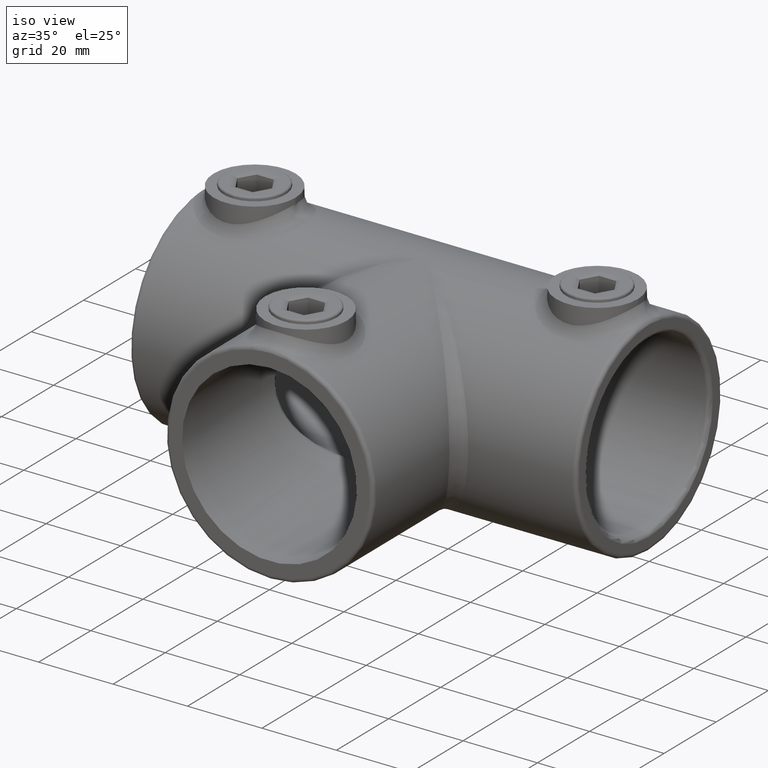
[diagram: clean part render]
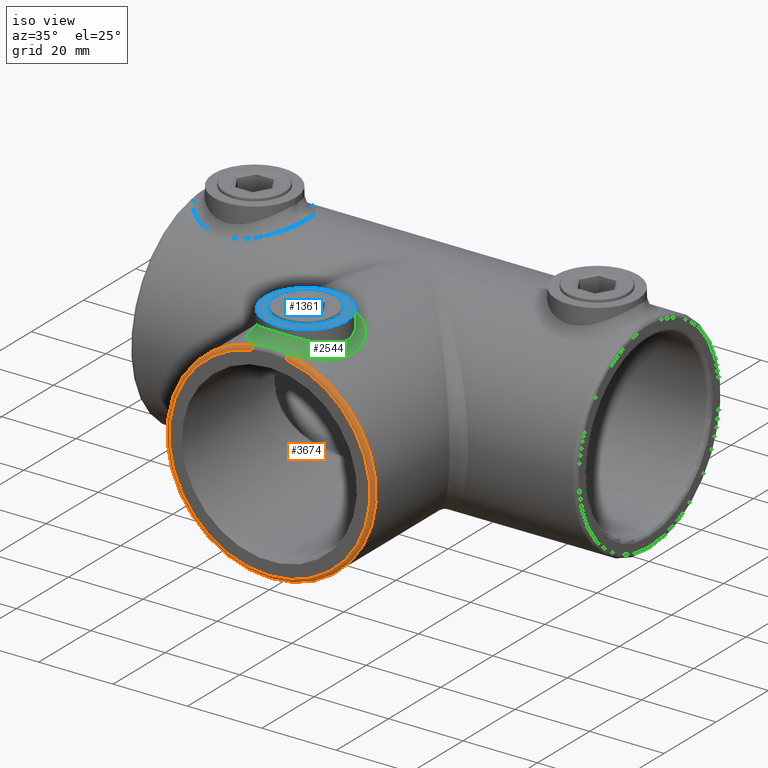
[diagram: same view with three faces highlighted in distinct colors, each labeled with its STEP entity id]
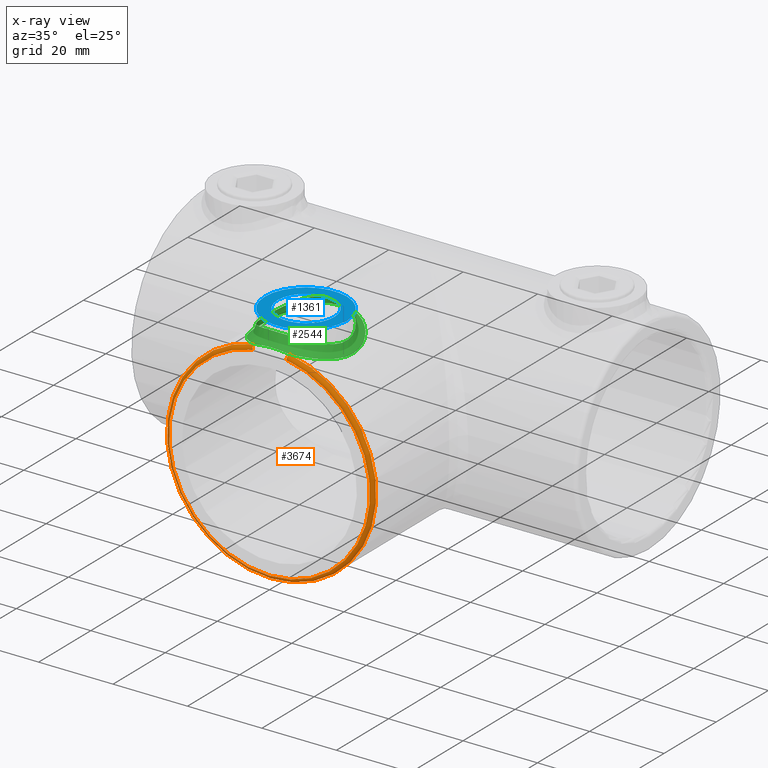
[diagram: x-ray of the same camera — body ghosted, the three highlighted faces saturated]
A machine part, iso view with three faces highlighted in distinct colors.
The next image is the same camera in x-ray (body ghosted, the three faces saturated) — at least one of them is partly hidden behind the body in this view.
Their STEP definitions:

[orange] entity #3674 — the highlighted toroidal blend (fillet) surface has major radius 27 mm and minor (blend) radius 1 mm.
#53 = DIRECTION ( 'NONE',  ( -0.1676178200873106872, 0.000000000000000000, 0.9858520509636210516 ) ) ;
#71 = CIRCLE ( 'NONE', #3786, 28.00000000000000000 ) ;
#538 = DIRECTION ( 'NONE',  ( -0.1676178200883655656, 0.000000000000000000, -0.9858520509634416396 ) ) ;
#879 = VERTEX_POINT ( 'NONE', #3032 ) ;
#957 = EDGE_LOOP ( 'NONE', ( #1558, #2098, #1027, #3962 ) ) ;
#1027 = ORIENTED_EDGE ( 'NONE', *, *, #4116, .T. ) ;
#1260 = CARTESIAN_POINT ( 'NONE',  ( -4.693298962444698574, 1.000000000000000444, 27.60385742698138500 ) ) ;
#1273 = CARTESIAN_POINT ( 'NONE',  ( 4.525681142382864230, 1.000000000000112577, 26.61800537601343564 ) ) ;
#1558 = ORIENTED_EDGE ( 'NONE', *, *, #2959, .T. ) ;
#1597 = DIRECTION ( 'NONE',  ( -0.9858520509636210516, -0.000000000000000000, -0.1676178200873106316 ) ) ;
#1614 = EDGE_CURVE ( 'NONE', #1681, #2271, #4261, .T. ) ;
#1681 = VERTEX_POINT ( 'NONE', #3466 ) ;
#1760 = AXIS2_PLACEMENT_3D ( 'NONE', #3131, #1597, #53 ) ;
#2098 = ORIENTED_EDGE ( 'NONE', *, *, #1614, .F. ) ;
#2138 = CIRCLE ( 'NONE', #1760, 1.000000000000000000 ) ;
#2254 = DIRECTION ( 'NONE',  ( 0.000000000000000000, 1.000000000000000000, 0.000000000000000000 ) ) ;
#2269 = DIRECTION ( 'NONE',  ( -0.000000000000000000, -1.000000000000000000, -0.000000000000000000 ) ) ;
#2271 = VERTEX_POINT ( 'NONE', #2517 ) ;
#2305 = CARTESIAN_POINT ( 'NONE',  ( 0.000000000000000000, 0.000000000000000000, 0.000000000000000000 ) ) ;
#2517 = CARTESIAN_POINT ( 'NONE',  ( 4.525681142383252364, 0.000000000000000000, 26.61800537601336814 ) ) ;
#2640 = DIRECTION ( 'NONE',  ( 0.000000000000000000, 0.000000000000000000, 1.000000000000000000 ) ) ;
#2841 = CARTESIAN_POINT ( 'NONE',  ( 0.000000000000000000, 1.000000000000000888, 0.000000000000000000 ) ) ;
#2959 = EDGE_CURVE ( 'NONE', #879, #2271, #3469, .T. ) ;
#3020 = DIRECTION ( 'NONE',  ( 0.000000000000000000, 0.000000000000000000, 1.000000000000000000 ) ) ;
#3032 = CARTESIAN_POINT ( 'NONE',  ( 4.693298962443770428, 0.9999999999995908828, 27.60385742698154132 ) ) ;
#3131 = CARTESIAN_POINT ( 'NONE',  ( -4.525681142357388609, 1.000000000000000000, 26.61800537601776639 ) ) ;
#3305 = VERTEX_POINT ( 'NONE', #1260 ) ;
#3466 = CARTESIAN_POINT ( 'NONE',  ( -4.525681142357388609, 0.000000000000000000, 26.61800537601776639 ) ) ;
#3469 = CIRCLE ( 'NONE', #3816, 0.9999999999999990008 ) ;
#3674 = ADVANCED_FACE ( 'NONE', ( #4196 ), #3699, .T. ) ;
#3699 = TOROIDAL_SURFACE ( 'NONE', #3753, 27.00000000000000000, 1.000000000000000000 ) ;
#3753 = AXIS2_PLACEMENT_3D ( 'NONE', #4920, #2254, #2640 ) ;
#3786 = AXIS2_PLACEMENT_3D ( 'NONE', #2841, #4358, #3984 ) ;
#3816 = AXIS2_PLACEMENT_3D ( 'NONE', #1273, #4407, #538 ) ;
#3962 = ORIENTED_EDGE ( 'NONE', *, *, #4703, .F. ) ;
#3984 = DIRECTION ( 'NONE',  ( 0.000000000000000000, 0.000000000000000000, 1.000000000000000000 ) ) ;
#4116 = EDGE_CURVE ( 'NONE', #1681, #3305, #2138, .T. ) ;
#4196 = FACE_OUTER_BOUND ( 'NONE', #957, .T. ) ;
#4261 = CIRCLE ( 'NONE', #4401, 27.00000000000000000 ) ;
#4358 = DIRECTION ( 'NONE',  ( 0.000000000000000000, 1.000000000000000000, 0.000000000000000000 ) ) ;
#4401 = AXIS2_PLACEMENT_3D ( 'NONE', #2305, #2269, #3020 ) ;
#4407 = DIRECTION ( 'NONE',  ( 0.9858520509634417506, 3.932746672653489014E-13, -0.1676178200883655378 ) ) ;
#4703 = EDGE_CURVE ( 'NONE', #879, #3305, #71, .T. ) ;
#4920 = CARTESIAN_POINT ( 'NONE',  ( 0.000000000000000000, 1.000000000000000888, 0.000000000000000000 ) ) ;

[blue] entity #1361 — the highlighted planar face has unit normal (0, 0, 1).
#398 = EDGE_LOOP ( 'NONE', ( #763 ) ) ;
#763 = ORIENTED_EDGE ( 'NONE', *, *, #4774, .T. ) ;
#1323 = DIRECTION ( 'NONE',  ( 1.000000000000000000, 0.000000000000000000, 0.000000000000000000 ) ) ;
#1361 = ADVANCED_FACE ( 'NONE', ( #4442, #2445 ), #1460, .T. ) ;
#1460 = PLANE ( 'NONE',  #2822 ) ;
#1498 = ORIENTED_EDGE ( 'NONE', *, *, #2455, .F. ) ;
#1764 = DIRECTION ( 'NONE',  ( -0.000000000000000000, -0.000000000000000000, 1.000000000000000000 ) ) ;
#1797 = CARTESIAN_POINT ( 'NONE',  ( 0.000000000000000000, 14.00000000000000000, 32.50000000000000000 ) ) ;
#1835 = DIRECTION ( 'NONE',  ( 1.000000000000000000, 0.000000000000000000, 0.000000000000000000 ) ) ;
#1862 = EDGE_LOOP ( 'NONE', ( #1498 ) ) ;
#2091 = DIRECTION ( 'NONE',  ( -0.000000000000000000, 0.000000000000000000, 1.000000000000000000 ) ) ;
#2398 = CARTESIAN_POINT ( 'NONE',  ( 11.00000000000000000, 14.00000000000000000, 32.50000000000000000 ) ) ;
#2445 = FACE_OUTER_BOUND ( 'NONE', #398, .T. ) ;
#2455 = EDGE_CURVE ( 'NONE', #4552, #4552, #2809, .T. ) ;
#2809 = CIRCLE ( 'NONE', #4279, 7.624999999999987566 ) ;
#2822 = AXIS2_PLACEMENT_3D ( 'NONE', #4489, #4150, #1835 ) ;
#3397 = VERTEX_POINT ( 'NONE', #2398 ) ;
#3617 = CARTESIAN_POINT ( 'NONE',  ( 0.000000000000000000, 14.00000000000000000, 32.50000000000000000 ) ) ;
#3817 = CIRCLE ( 'NONE', #4054, 11.00000000000000000 ) ;
#4054 = AXIS2_PLACEMENT_3D ( 'NONE', #3617, #2091, #1323 ) ;
#4150 = DIRECTION ( 'NONE',  ( -0.000000000000000000, 0.000000000000000000, 1.000000000000000000 ) ) ;
#4279 = AXIS2_PLACEMENT_3D ( 'NONE', #1797, #1764, #4499 ) ;
#4442 = FACE_BOUND ( 'NONE', #1862, .T. ) ;
#4489 = CARTESIAN_POINT ( 'NONE',  ( 0.000000000000000000, 0.000000000000000000, 32.50000000000000000 ) ) ;
#4499 = DIRECTION ( 'NONE',  ( 1.000000000000000000, 0.000000000000000000, 0.000000000000000000 ) ) ;
#4552 = VERTEX_POINT ( 'NONE', #4979 ) ;
#4774 = EDGE_CURVE ( 'NONE', #3397, #3397, #3817, .T. ) ;
#4979 = CARTESIAN_POINT ( 'NONE',  ( 7.624999999999987566, 14.00000000000000000, 32.50000000000000000 ) ) ;

[green] entity #2544 — the highlighted face is a freeform B-spline surface patch.
#8 = CARTESIAN_POINT ( 'NONE',  ( 8.747815147694550930, 20.69753408766846547, 26.65717222516375529 ) ) ;
#26 = CARTESIAN_POINT ( 'NONE',  ( 10.88156833453323813, 15.65100978348941219, 27.73457801811033008 ) ) ;
#44 = CARTESIAN_POINT ( 'NONE',  ( 10.67721968935502375, 21.51109523791572542, 25.88520489174900163 ) ) ;
#56 = CARTESIAN_POINT ( 'NONE',  ( 7.244458234359815840, 22.30423358732152650, 27.09680987455538315 ) ) ;
#63 = CARTESIAN_POINT ( 'NONE',  ( 7.918799880402216829, 3.055338233423284588, 26.86289336430689190 ) ) ;
#73 = CARTESIAN_POINT ( 'NONE',  ( 10.91900834483602445, 15.39397352945270647, 25.84901130939849523 ) ) ;
#91 = CARTESIAN_POINT ( 'NONE',  ( 6.592038322280307838, 5.165405721902875946, 29.85334485294574236 ) ) ;
#109 = CARTESIAN_POINT ( 'NONE',  ( 8.984089986574280928, 7.624784130656480308, 26.57949325691620146 ) ) ;
#112 = CARTESIAN_POINT ( 'NONE',  ( -4.693298962444698574, 1.000000000000000444, 27.60385742698138500 ) ) ;
#125 = CARTESIAN_POINT ( 'NONE',  ( 5.461541890516103059, 1.364839206141819083, 27.46475125048204191 ) ) ;
#138 = B_SPLINE_CURVE_WITH_KNOTS ( 'NONE', 3,
 ( #4548, #1455, #1075, #2236, #3361, #2606, #4928, #3710, #1061, #3016, #4163, #2591, #3730, #1419, #1832, #1401, #3392, #2201, #4534, #4133, #4900, #2217, #4884, #2624, #4914, #4100, #1438, #4119, #685, #1786, #2170, #3765, #4864, #2560, #1800, #2185, #278, #244, #296, #2955, #4503, #4518, #2574, #637, #259, #2972, #652, #2988, #670, #1125, #3778, #2706, #762, #3796, #731, #3458, #2652, #4957, #4181, #1483, #4624, #1497, #2686, #3847, #4822, #4942, #2249, #1930, #3830, #1161, #4243, #747, #4993, #2314, #3409, #3443, #391, #1543, #4973, #3813, #1106, #4193, #3096, #2296, #1877, #3046, #782, #3082, #4228, #2264, #1091, #1911, #1860, #3062, #4563, #4209, #3424, #2636, #323, #372, #3028, #719, #4610, #4577 ),
 .UNSPECIFIED., .T., .F.,
 ( 4, 2, 2, 2, 2, 2, 2, 2, 2, 2, 2, 2, 2, 2, 2, 2, 2, 2, 2, 2, 2, 2, 2, 2, 2, 2, 2, 2, 2, 2, 2, 2, 2, 2, 2, 2, 2, 2, 2, 2, 2, 2, 2, 2, 2, 2, 2, 2, 2, 2, 2, 4 ),
 ( 0.000000000000000000, 0.001117589833589376341, 0.002235179667178752681, 0.003352769500768129456, 0.004470359334357505363, 0.006705539001536257177, 0.007823128835125630481, 0.008940718668715005521, 0.01117589833589375040, 0.01229348816948312370, 0.01341107800307249701, 0.01452866783666186684, 0.01564625767025124015, 0.01788143733742998676, 0.01899902717101936006, 0.02011661700460873337, 0.02235179667178747651, 0.02346938650537685675, 0.02458697633896623005, 0.02682215600614498013, 0.02905733567332372674, 0.03017492550691310352, 0.03129251534050248029, 0.03352769500768122690, 0.03464528484127060021, 0.03576287467485997351, 0.03688046450844935376, 0.03799805434203872706, 0.03911564417562810037, 0.04023323400921748061, 0.04246841367639624110, 0.04358600350998562828, 0.04470359334357500852, 0.04582118317716439571, 0.04693877301075378289, 0.04917395267793255031, 0.05029154251152193750, 0.05140913234511131774, 0.05252672217870069798, 0.05364431201229007823, 0.05587949167946885259, 0.05699708151305823284, 0.05811467134664762002, 0.06034985101382638745, 0.06146744084741577463, 0.06258503068100515487, 0.06482021034818392924, 0.06593780018177332336, 0.06705539001536270360, 0.06817297984895208385, 0.06929056968254147797, 0.07152574934972026621 ),
 .UNSPECIFIED. ) ;
#140 = CARTESIAN_POINT ( 'NONE',  ( 10.86683143401504203, 12.24309458897246117, 25.87094334712466903 ) ) ;
#156 = CARTESIAN_POINT ( 'NONE',  ( -5.051420840153499014, 4.221802430394267169, 30.32879106606744557 ) ) ;
#177 = CARTESIAN_POINT ( 'NONE',  ( 3.132256820395491026, 0.4049055008581974868, 27.83641329481930882 ) ) ;
#198 = CARTESIAN_POINT ( 'NONE',  ( 2.410121478455123256, 3.243608583408068124, 27.91204991820351466 ) ) ;
#201 = CARTESIAN_POINT ( 'NONE',  ( -9.724412650545923853, 5.042102268591136749, 26.25817700480780204 ) ) ;
#216 = CARTESIAN_POINT ( 'NONE',  ( -8.148393320703842591, 6.601988035816792610, 29.21575196613563818 ) ) ;
#222 = CARTESIAN_POINT ( 'NONE',  ( -9.595816279733497822, 19.40630255176634122, 26.36675340276686796 ) ) ;
#240 = CARTESIAN_POINT ( 'NONE',  ( -11.90374522051882700, 18.74585746249857721, 25.34405302004173777 ) ) ;
#244 = CARTESIAN_POINT ( 'NONE',  ( 6.736393003228988263, 5.275344315972384734, 29.80077966393088928 ) ) ;
#249 = CARTESIAN_POINT ( 'NONE',  ( -9.036150844685954198, 7.717192834747863550, 28.78901879740828562 ) ) ;
#255 = CARTESIAN_POINT ( 'NONE',  ( 3.915984245278865572, 0.9238252978241076052, 27.73601904117651884 ) ) ;
#259 = CARTESIAN_POINT ( 'NONE',  ( 10.00271630797711353, 9.409301304970862034, 28.26599336670144424 ) ) ;
#263 = EDGE_CURVE ( 'NONE', #2994, #2994, #138, .T. ) ;
#267 = CARTESIAN_POINT ( 'NONE',  ( -8.757073602571917803, 7.314812302166209257, 26.65415115463835605 ) ) ;
#278 = CARTESIAN_POINT ( 'NONE',  ( 5.858282351825009115, 4.683070261025224390, 30.09246352538295355 ) ) ;
#290 = CARTESIAN_POINT ( 'NONE',  ( -10.48375175959971273, 10.59139866062515978, 27.98407375471875014 ) ) ;
#296 = CARTESIAN_POINT ( 'NONE',  ( 7.279523470582170752, 5.722713202712196967, 29.59083671688397743 ) ) ;
#307 = CARTESIAN_POINT ( 'NONE',  ( -3.052612529636439476, 24.57999235539440619, 27.84890662541052819 ) ) ;
#318 = CARTESIAN_POINT ( 'NONE',  ( -4.769807109953336344, 23.93825192504092669, 30.41205888829426485 ) ) ;
#323 = CARTESIAN_POINT ( 'NONE',  ( -10.40099723035340062, 17.59889313069270855, 28.03191317973595176 ) ) ;
#326 = CARTESIAN_POINT ( 'NONE',  ( -1.582014338906662987, 27.91617589641548136, 27.96559781602287487 ) ) ;
#335 = CARTESIAN_POINT ( 'NONE',  ( -2.724222393392107922, 27.67899109544498515, 27.87017509836437767 ) ) ;
#341 = CARTESIAN_POINT ( 'NONE',  ( -12.57793524452413614, 15.63984709426674868, 25.01627357825431730 ) ) ;
#350 = CARTESIAN_POINT ( 'NONE',  ( -4.317251587655978717, 24.15092353480870102, 27.69713859468748041 ) ) ;
#359 = CARTESIAN_POINT ( 'NONE',  ( -7.196929155394411914, 25.51857054056032581, 27.06103084399338243 ) ) ;
#368 = CARTESIAN_POINT ( 'NONE',  ( -7.146349513058257941, 22.37008333899122903, 29.63802739977395717 ) ) ;
#372 = CARTESIAN_POINT ( 'NONE',  ( -10.61636662274304221, 16.90267719243351152, 27.90082399764611409 ) ) ;
#375 = CARTESIAN_POINT ( 'NONE',  ( -3.092755170727154557, 27.58153032252785053, 27.83118355919367559 ) ) ;
#386 = CARTESIAN_POINT ( 'NONE',  ( 7.646588538039807759, 21.91547741351736178, 29.43463256640814762 ) ) ;
#391 = CARTESIAN_POINT ( 'NONE',  ( 1.460709701085554535, 24.90875411239322190, 30.94769925981424663 ) ) ;
#393 = CARTESIAN_POINT ( 'NONE',  ( -10.28232195967027884, 22.15853983252345927, 26.04458699372773012 ) ) ;
#401 = CARTESIAN_POINT ( 'NONE',  ( 9.397757700952826809, 19.78134245481451714, 26.44054980742892269 ) ) ;
#415 = CARTESIAN_POINT ( 'NONE',  ( 5.676707615389762651, 23.44926402183148539, 30.15630369559016088 ) ) ;
#433 = CARTESIAN_POINT ( 'NONE',  ( 11.05028306897889223, 20.86674182332933114, 25.73180326702826193 ) ) ;
#449 = CARTESIAN_POINT ( 'NONE',  ( 10.52522982368490112, 10.69752758394559855, 26.01193586993841933 ) ) ;
#467 = CARTESIAN_POINT ( 'NONE',  ( 9.196069714673745565, 7.935294341593444933, 26.50749305343704876 ) ) ;
#483 = CARTESIAN_POINT ( 'NONE',  ( 9.099550692454748457, 4.268027041624306683, 26.48196892618271647 ) ) ;
#498 = CARTESIAN_POINT ( 'NONE',  ( 10.96434442414372867, 13.02832682665718345, 25.82989913864360076 ) ) ;
#507 = FACE_OUTER_BOUND ( 'NONE', #4151, .T. ) ;
#516 = CARTESIAN_POINT ( 'NONE',  ( 12.63587266212969951, 14.70979170260747892, 24.98672192725144114 ) ) ;
#534 = CARTESIAN_POINT ( 'NONE',  ( -3.097259527599507400, 0.4184372711139083822, 27.83124320380339256 ) ) ;
#554 = CARTESIAN_POINT ( 'NONE',  ( -6.530542007827608408, 2.002743400045904565, 27.23030681721326829 ) ) ;
#573 = CARTESIAN_POINT ( 'NONE',  ( -7.404807688193923987, 5.834438045962806463, 29.54026781477574204 ) ) ;
#576 = CARTESIAN_POINT ( 'NONE',  ( -11.85342302118693958, 9.108289011477745944, 25.36754467737691954 ) ) ;
#591 = CARTESIAN_POINT ( 'NONE',  ( 0.6416807323875998170, 0.01020506800435211706, 27.99582049410542339 ) ) ;
#593 = CARTESIAN_POINT ( 'NONE',  ( -7.926004007221934877, 3.061914510183791904, 26.86072654532565807 ) ) ;
#609 = CARTESIAN_POINT ( 'NONE',  ( -3.502403813165082980, 0.5398562378451742250, 27.78295477283451831 ) ) ;
#614 = CARTESIAN_POINT ( 'NONE',  ( -9.941345935441036730, 18.72206746930800492, 28.30108062063095531 ) ) ;
#626 = CARTESIAN_POINT ( 'NONE',  ( -9.944510442728402566, 9.242445365299126081, 28.30109716089739536 ) ) ;
#632 = CARTESIAN_POINT ( 'NONE',  ( -3.131258561306188515, 0.8597860478284603536, 27.86505447056563156 ) ) ;
#637 = CARTESIAN_POINT ( 'NONE',  ( 9.846700245738205126, 9.083623808879652373, 28.35490546973456460 ) ) ;
#642 = CARTESIAN_POINT ( 'NONE',  ( -10.14950819530125337, 5.637220682335914113, 26.09715821449715634 ) ) ;
#648 = CARTESIAN_POINT ( 'NONE',  ( -11.74175774679269857, 8.803355289224546354, 25.41910944576213183 ) ) ;
#652 = CARTESIAN_POINT ( 'NONE',  ( 10.63375338134312109, 11.09102641890647867, 27.89045404457614552 ) ) ;
#666 = CARTESIAN_POINT ( 'NONE',  ( -10.88096031482195691, 12.34628655150480725, 27.73495871652651346 ) ) ;
#670 = CARTESIAN_POINT ( 'NONE',  ( 10.90852656195296078, 12.53752375838020860, 27.71730413719675568 ) ) ;
#681 = CARTESIAN_POINT ( 'NONE',  ( 4.591587152280025563, 24.03090063538333609, 27.65536862537221197 ) ) ;
#685 = CARTESIAN_POINT ( 'NONE',  ( 0.7390362551965264926, 3.018577639999326490, 30.98929995297525153 ) ) ;
#694 = CARTESIAN_POINT ( 'NONE',  ( -10.21413110116405676, 9.916922012962142929, 28.14258545780807452 ) ) ;
#700 = CARTESIAN_POINT ( 'NONE',  ( -1.303652518635075142, 24.94637850784112487, 30.96887183700506796 ) ) ;
#712 = CARTESIAN_POINT ( 'NONE',  ( 2.693091923226471174, 24.67608724140379195, 27.88323857520520122 ) ) ;
#719 = CARTESIAN_POINT ( 'NONE',  ( -10.92535819269619957, 15.47300610449268277, 27.70728167135543885 ) ) ;
#723 = CARTESIAN_POINT ( 'NONE',  ( 0.3719298331789796519, 28.00073904957184112, 28.00030146417976695 ) ) ;
#727 = CARTESIAN_POINT ( 'NONE',  ( -8.215158384551502380, 24.65283334069014387, 26.76983119954733681 ) ) ;
#731 = CARTESIAN_POINT ( 'NONE',  ( 10.85245980519608011, 15.83297750561373007, 27.75307925416289834 ) ) ;
#734 = CARTESIAN_POINT ( 'NONE',  ( 1.544136220955835137, 27.90193718766093767, 27.96009290718336970 ) ) ;
#743 = CARTESIAN_POINT ( 'NONE',  ( 3.482437993541025012, 27.46661327156838439, 27.78551073419775719 ) ) ;
#747 = CARTESIAN_POINT ( 'NONE',  ( 3.930213740943125700, 24.28024477644219203, 30.59679268643579420 ) ) ;
#758 = CARTESIAN_POINT ( 'NONE',  ( 12.35491663097954174, 17.01860381187197646, 25.12694628224103965 ) ) ;
#762 = CARTESIAN_POINT ( 'NONE',  ( 10.98179991998642535, 14.73201847971274248, 27.67039568363643198 ) ) ;
#765 = CARTESIAN_POINT ( 'NONE',  ( 3.806005663164742092, 27.35763605973811252, 27.74264438561802493 ) ) ;
#782 = CARTESIAN_POINT ( 'NONE',  ( -5.558211910831236224, 23.51881821504351677, 30.19195585208512256 ) ) ;
#784 = CARTESIAN_POINT ( 'NONE',  ( 2.687788814386597558, 27.68677182052712737, 27.87330310388960797 ) ) ;
#808 = CARTESIAN_POINT ( 'NONE',  ( 10.34072178922103191, 17.76796011113717100, 28.06822359184914717 ) ) ;
#816 = CARTESIAN_POINT ( 'NONE',  ( 10.38226200110601383, 5.968898663082504719, 26.00830024515617822 ) ) ;
#825 = CARTESIAN_POINT ( 'NONE',  ( 11.88728135282505072, 18.79558559594587663, 25.35194388925105713 ) ) ;
#842 = CARTESIAN_POINT ( 'NONE',  ( 11.42632068957186675, 7.985636678056445170, 25.56310098565083777 ) ) ;
#858 = CARTESIAN_POINT ( 'NONE',  ( 11.00428571199418748, 14.19413666520105544, 27.65587291241983436 ) ) ;
#874 = CARTESIAN_POINT ( 'NONE',  ( 12.44462967783242213, 11.47375004184071834, 25.08268412958787152 ) ) ;
#879 = VERTEX_POINT ( 'NONE', #3032 ) ;
#890 = CARTESIAN_POINT ( 'NONE',  ( 11.92192743772516472, 9.244269304154448363, 25.33770692433907357 ) ) ;
#908 = CARTESIAN_POINT ( 'NONE',  ( 10.59312240958378482, 10.94777788691344789, 27.91558301369346751 ) ) ;
#922 = B_SPLINE_CURVE_WITH_KNOTS ( 'NONE', 3,
 ( #112, #3214, #2874, #1690, #3289, #2912, #593, #2125, #4819, #2513, #201, #3671, #4440, #3270, #985, #2893, #576, #967, #1742, #3652, #1358, #4051, #341, #1949, #2300, #3446, #1150, #4245, #4259, #3031, #4996, #393, #1914, #4579, #2688, #2334, #4959, #359, #2654, #1932, #3867, #1109, #3851, #375, #4230, #326, #4213, #723, #1893, #734, #1545, #784, #3084, #765, #3798, #4195, #3461, #4596, #3480, #2280, #3428, #1127, #1164, #44, #4627, #1880, #3048, #3065, #2316, #3815, #4640, #1513, #2709, #4976, #1180, #2670, #4327, #4313, #2381, #1995, #1242, #4651, #816, #4345, #3171, #3140, #4715, #63, #2012, #2369, #2773, #4668, #2740, #2027 ),
 .UNSPECIFIED., .F., .F.,
 ( 4, 2, 2, 2, 2, 2, 2, 2, 2, 2, 2, 2, 2, 2, 2, 2, 2, 2, 2, 2, 2, 2, 2, 2, 2, 2, 2, 2, 2, 2, 2, 2, 2, 2, 2, 2, 2, 2, 2, 2, 2, 2, 2, 2, 2, 2, 4 ),
 ( 0.06836367129737423720, 0.06953539209662747134, 0.07070711289588070547, 0.07305055449438717374, 0.07422227529364042176, 0.07539399609289365589, 0.07773743769140011028, 0.07890915849065334442, 0.08008087928990657856, 0.08242432088841304683, 0.08476776248691951510, 0.08711120408542596949, 0.08828292488467921750, 0.08945464568393245164, 0.09179808728243893379, 0.09296980808169216792, 0.09414152888094540206, 0.09648497047945188421, 0.09765669127870513222, 0.09882841207795836636, 0.1011718536764648624, 0.1023435744757180965, 0.1035152952749713445, 0.1058587368734778267, 0.1070304576727310608, 0.1082021784719843227, 0.1093738992712375568, 0.1105456200704908049, 0.1128890616689972870, 0.1152325032675037830, 0.1175759448660102652, 0.1187476656652635132, 0.1199193864645167473, 0.1222628280630232434, 0.1246062696615297255, 0.1257779904607829735, 0.1269497112600362076, 0.1292931528585427037, 0.1316365944570491719, 0.1328083152563024338, 0.1339800360555556680, 0.1363234776540621640, 0.1374951984533153704, 0.1386669192525686323, 0.1410103608510751005, 0.1421820816503283347, 0.1433538024495815688 ),
 .UNSPECIFIED. ) ;
#924 = CARTESIAN_POINT ( 'NONE',  ( -4.293148530045629130, 0.8235249386504446267, 27.67179582316277475 ) ) ;
#942 = CARTESIAN_POINT ( 'NONE',  ( -0.7870762589275395182, 3.009492337273362850, 27.99656391015935952 ) ) ;
#964 = CARTESIAN_POINT ( 'NONE',  ( 3.926507914558457824, 0.6604406975908551081, 27.73430872975032813 ) ) ;
#967 = CARTESIAN_POINT ( 'NONE',  ( -12.19606175907436452, 10.22003412610554207, 25.20555333017940569 ) ) ;
#972 = CARTESIAN_POINT ( 'NONE',  ( -4.693298962444698574, 1.000000000000000444, 27.60385742698138500 ) ) ;
#982 = CARTESIAN_POINT ( 'NONE',  ( -1.861999624798209796, 0.1212121656554582261, 27.95026684665972283 ) ) ;
#985 = CARTESIAN_POINT ( 'NONE',  ( -11.43843951856013064, 8.018511982358869972, 25.55751661610549164 ) ) ;
#989 = CARTESIAN_POINT ( 'NONE',  ( -10.22746658828095079, 18.06536681966138502, 28.13545026822758643 ) ) ;
#998 = CARTESIAN_POINT ( 'NONE',  ( -6.980151515102575921, 5.447825550059297584, 27.16884771036689372 ) ) ;
#1004 = CARTESIAN_POINT ( 'NONE',  ( -9.434718344473747464, 19.66691447255384873, 28.58094271692665700 ) ) ;
#1017 = CARTESIAN_POINT ( 'NONE',  ( -11.05286764372347186, 7.139411560004347734, 25.73060036452723409 ) ) ;
#1023 = CARTESIAN_POINT ( 'NONE',  ( -9.202750440736418014, 20.05443598737504374, 26.50519056806258078 ) ) ;
#1040 = CARTESIAN_POINT ( 'NONE',  ( -0.7747414671431422928, 0.7498352628240348983, 28.09561880097741593 ) ) ;
#1057 = CARTESIAN_POINT ( 'NONE',  ( -11.00431144375454018, 13.80295034041054336, 27.65585633448002767 ) ) ;
#1061 = CARTESIAN_POINT ( 'NONE',  ( -10.28107653602741323, 10.07185953651826793, 28.10375562734972021 ) ) ;
#1072 = CARTESIAN_POINT ( 'NONE',  ( -6.296186581265290627, 23.02688465274236762, 29.94895633667102786 ) ) ;
#1075 = CARTESIAN_POINT ( 'NONE',  ( -10.98089488546523107, 13.25520904395013133, 27.67097813196479450 ) ) ;
#1087 = CARTESIAN_POINT ( 'NONE',  ( -7.803828461834517505, 21.80408225442189973, 26.94882306151485807 ) ) ;
#1091 = CARTESIAN_POINT ( 'NONE',  ( -7.533655569704126975, 22.02292901475739129, 29.48178887579179630 ) ) ;
#1102 = CARTESIAN_POINT ( 'NONE',  ( 3.722820360530500139, 24.35728393958000382, 30.63900500255193649 ) ) ;
#1106 = CARTESIAN_POINT ( 'NONE',  ( -1.478716688698707316, 24.92435608861479324, 30.95620063257527477 ) ) ;
#1109 = CARTESIAN_POINT ( 'NONE',  ( -4.204064019421420717, 27.21038611217867853, 27.68494362935946995 ) ) ;
#1120 = CARTESIAN_POINT ( 'NONE',  ( -8.175408393323422729, 21.39357492321257226, 29.20956914786092184 ) ) ;
#1125 = CARTESIAN_POINT ( 'NONE',  ( 10.98176486420542908, 13.26813322425531538, 27.67041772405156763 ) ) ;
#1127 = CARTESIAN_POINT ( 'NONE',  ( 10.06172433786265152, 22.48899032103348006, 26.13081572048992740 ) ) ;
#1140 = CARTESIAN_POINT ( 'NONE',  ( -1.139150355529864100, 24.96087273692364406, 27.98578580738469057 ) ) ;
#1150 = CARTESIAN_POINT ( 'NONE',  ( -12.03483429696428963, 18.31472740543164690, 25.28200666846865374 ) ) ;
#1157 = CARTESIAN_POINT ( 'NONE',  ( 10.60604759714990841, 16.95231874725927668, 25.97879339275570487 ) ) ;
#1161 = CARTESIAN_POINT ( 'NONE',  ( 5.553547937286819725, 23.52182380606117817, 30.19345434854971444 ) ) ;
#1164 = CARTESIAN_POINT ( 'NONE',  ( 10.27575530572086926, 22.16869230605045260, 26.04718229443497890 ) ) ;
#1174 = CARTESIAN_POINT ( 'NONE',  ( 9.625751265018720915, 23.09018095622380429, 26.29485170438912789 ) ) ;
#1180 = CARTESIAN_POINT ( 'NONE',  ( 12.59527349464399215, 12.52862723295392833, 25.00750727828781450 ) ) ;
#1190 = CARTESIAN_POINT ( 'NONE',  ( 10.37037476181514606, 17.70005782578748565, 26.07332092135747104 ) ) ;
#1202 = CARTESIAN_POINT ( 'NONE',  ( 8.790213216820124131, 24.07424398083865924, 26.58611973761055225 ) ) ;
#1218 = B_SPLINE_CURVE_WITH_KNOTS ( 'NONE', 3,
 ( #972, #1431, #632, #4072, #1040, #4113, #3690, #4514, #255, #2586 ),
 .UNSPECIFIED., .F., .F.,
 ( 4, 2, 2, 2, 4 ),
 ( 0.000000000000000000, 0.002381703006735205914, 0.004763406013470411829, 0.007145109020205616876, 0.009526812026940825393 ),
 .UNSPECIFIED. ) ;
#1235 = CARTESIAN_POINT ( 'NONE',  ( 12.65008797390041551, 14.24708302843790442, 24.97949811443548640 ) ) ;
#1242 = CARTESIAN_POINT ( 'NONE',  ( 11.28271763954801443, 7.666271676788954714, 25.62683381087254020 ) ) ;
#1254 = CARTESIAN_POINT ( 'NONE',  ( 9.939733048799965331, 9.274428818457465695, 28.30200466248351177 ) ) ;
#1260 = CARTESIAN_POINT ( 'NONE',  ( -4.693298962444698574, 1.000000000000000444, 27.60385742698138500 ) ) ;
#1270 = CARTESIAN_POINT ( 'NONE',  ( 6.196091297923950414, 1.787263691153007095, 27.30841360644202709 ) ) ;
#1283 = CARTESIAN_POINT ( 'NONE',  ( 6.131142639294216323, 4.824146091528975333, 27.36776082547885380 ) ) ;
#1299 = CARTESIAN_POINT ( 'NONE',  ( 10.15670920548193479, 5.648012690191286822, 26.09413739142117450 ) ) ;
#1318 = CARTESIAN_POINT ( 'NONE',  ( -3.660280677764512713, 3.612059449261936894, 27.78063763192435687 ) ) ;
#1337 = CARTESIAN_POINT ( 'NONE',  ( -5.680905165038254268, 4.573584099965553484, 30.14783969063485713 ) ) ;
#1355 = CARTESIAN_POINT ( 'NONE',  ( 3.991142160348760015, 3.733648188704965509, 27.73786236745102585 ) ) ;
#1358 = CARTESIAN_POINT ( 'NONE',  ( -12.64869294997873261, 13.28459507251577421, 24.98020383982910886 ) ) ;
#1373 = CARTESIAN_POINT ( 'NONE',  ( -5.219546532819791196, 4.296307094535920079, 27.54381690542780703 ) ) ;
#1378 = CARTESIAN_POINT ( 'NONE',  ( -9.776509396462847334, 19.07096832125815311, 26.30059018719688879 ) ) ;
#1390 = CARTESIAN_POINT ( 'NONE',  ( -9.639922102561866879, 4.928219127504013031, 26.28965738338031244 ) ) ;
#1397 = CARTESIAN_POINT ( 'NONE',  ( -10.99142269706113240, 13.43268424961413388, 27.66419134941187608 ) ) ;
#1401 = CARTESIAN_POINT ( 'NONE',  ( -7.284526126292598214, 5.727520170152812007, 29.58873780110094032 ) ) ;
#1414 = CARTESIAN_POINT ( 'NONE',  ( -10.39649272627231724, 10.31376124164780705, 26.06479063277676289 ) ) ;
#1419 = CARTESIAN_POINT ( 'NONE',  ( -8.272189651414588951, 6.740780549602844118, 29.15903630980682593 ) ) ;
#1426 = CARTESIAN_POINT ( 'NONE',  ( -8.385748563698218305, 6.872172171558045051, 29.10640638848790474 ) ) ;
#1431 = CARTESIAN_POINT ( 'NONE',  ( -3.914078554565085355, 0.9236385453808073631, 27.73634305300271663 ) ) ;
#1438 = CARTESIAN_POINT ( 'NONE',  ( -0.7310241073550313162, 2.999808046616649015, 31.00011033097391078 ) ) ;
#1446 = CARTESIAN_POINT ( 'NONE',  ( -9.400435042534322605, 8.223854590334118697, 26.43952678865788641 ) ) ;
#1451 = CARTESIAN_POINT ( 'NONE',  ( -10.90425913673916369, 15.62000990259960354, 27.72083313823744888 ) ) ;
#1455 = CARTESIAN_POINT ( 'NONE',  ( -10.99999999999999822, 13.62739002608478245, 27.65863337187866122 ) ) ;
#1467 = CARTESIAN_POINT ( 'NONE',  ( -7.413150536305517235, 22.13454130616892357, 29.53131192564425334 ) ) ;
#1480 = CARTESIAN_POINT ( 'NONE',  ( -3.374134144426110371, 24.48331897852533601, 27.81444069383420370 ) ) ;
#1483 = CARTESIAN_POINT ( 'NONE',  ( 9.859138417151614320, 18.93016448724240064, 28.34957364698804483 ) ) ;
#1491 = CARTESIAN_POINT ( 'NONE',  ( -3.766200303761148671, 24.34145604206123181, 30.63022047263942582 ) ) ;
#1497 = CARTESIAN_POINT ( 'NONE',  ( 8.925706386629105538, 20.43882691719116451, 28.84484550194363806 ) ) ;
#1507 = CARTESIAN_POINT ( 'NONE',  ( -1.498626942256203964, 27.93175446453515676, 27.97188424001034335 ) ) ;
#1513 = CARTESIAN_POINT ( 'NONE',  ( 12.62582810558060942, 14.86745583160934281, 24.99179330728943427 ) ) ;
#1523 = CARTESIAN_POINT ( 'NONE',  ( 4.279605810301289281, 27.18199774116209255, 27.67394000223879402 ) ) ;
#1543 = CARTESIAN_POINT ( 'NONE',  ( 0.7306308047756332469, 24.98183808579484477, 30.98953991913306538 ) ) ;
#1545 = CARTESIAN_POINT ( 'NONE',  ( 1.928189316935655206, 27.84289049386827841, 27.93612930579500997 ) ) ;
#1586 = CARTESIAN_POINT ( 'NONE',  ( 7.541407222982535075, 25.24701087219777662, 26.96757173287363329 ) ) ;
#1601 = CARTESIAN_POINT ( 'NONE',  ( 9.940588429874619436, 18.76412675656395379, 28.30327489899005400 ) ) ;
#1617 = CARTESIAN_POINT ( 'NONE',  ( 7.915680576989098327, 6.353449818331933230, 29.31932273989514925 ) ) ;
#1635 = CARTESIAN_POINT ( 'NONE',  ( 8.214886493656676336, 3.317883633252371123, 26.77501902788828048 ) ) ;
#1653 = CARTESIAN_POINT ( 'NONE',  ( 5.389967174944841233, 4.404278614626639943, 30.23431506453062667 ) ) ;
#1668 = CARTESIAN_POINT ( 'NONE',  ( 12.61018693597111806, 12.86043972166093496, 24.99972139424492568 ) ) ;
#1687 = CARTESIAN_POINT ( 'NONE',  ( 10.99191984121875976, 14.55769348061250668, 27.66387070522133484 ) ) ;
#1690 = CARTESIAN_POINT ( 'NONE',  ( -6.061830457363551972, 1.706405390692880220, 27.33810722998242326 ) ) ;
#1702 = CARTESIAN_POINT ( 'NONE',  ( -1.032140319795613381, 0.01603363494534857867, 27.99346033787290011 ) ) ;
#1721 = CARTESIAN_POINT ( 'NONE',  ( -5.986574897375381177, 4.764844854858752754, 30.05154519329593299 ) ) ;
#1739 = CARTESIAN_POINT ( 'NONE',  ( -4.599714118295434417, 3.989043748048805238, 27.64879952646784034 ) ) ;
#1742 = CARTESIAN_POINT ( 'NONE',  ( -12.36599626713482003, 10.97339366215634016, 25.12166625441442136 ) ) ;
#1758 = CARTESIAN_POINT ( 'NONE',  ( -7.891682226794843658, 3.023435502363676530, 26.87390502759868127 ) ) ;
#1775 = CARTESIAN_POINT ( 'NONE',  ( -8.040903271654274320, 6.465836561108576852, 26.87570760714628193 ) ) ;
#1779 = CARTESIAN_POINT ( 'NONE',  ( -12.28124291785168509, 10.54140605042083578, 25.16345797139594964 ) ) ;
#1786 = CARTESIAN_POINT ( 'NONE',  ( 1.477717375687805701, 3.093389023495518586, 30.94647434299679034 ) ) ;
#1796 = ORIENTED_EDGE ( 'NONE', *, *, #2421, .T. ) ;
#1800 = CARTESIAN_POINT ( 'NONE',  ( 4.925490290579039865, 4.157862544420094508, 30.36231712090127033 ) ) ;
#1813 = CARTESIAN_POINT ( 'NONE',  ( -12.63530116474380094, 13.27796177225325458, 24.98701154136042746 ) ) ;
#1828 = CARTESIAN_POINT ( 'NONE',  ( -10.50846568018934768, 17.28440544565577497, 26.01830201502834683 ) ) ;
#1832 = CARTESIAN_POINT ( 'NONE',  ( -8.032712239399121046, 6.476696541147993536, 29.26761416296676188 ) ) ;
#1842 = CARTESIAN_POINT ( 'NONE',  ( -2.369795500379889397, 24.74777871785359551, 30.85626528754946918 ) ) ;
#1852 = CARTESIAN_POINT ( 'NONE',  ( -11.00000000000000000, 14.00000000000000000, 27.65863337187866478 ) ) ;
#1855 = CARTESIAN_POINT ( 'NONE',  ( -9.244128187751009307, 19.97276337537147128, 28.68199299671441693 ) ) ;
#1860 = CARTESIAN_POINT ( 'NONE',  ( -8.725355520239469698, 20.73608644244830046, 28.94783281200644964 ) ) ;
#1873 = CARTESIAN_POINT ( 'NONE',  ( 4.671064562186412417, 27.01787146091769998, 27.61032092406782112 ) ) ;
#1877 = CARTESIAN_POINT ( 'NONE',  ( -3.940955601041637113, 24.27609570907501890, 30.59453536476922864 ) ) ;
#1880 = CARTESIAN_POINT ( 'NONE',  ( 11.38161492279285447, 20.15032072778303629, 25.58515266767539131 ) ) ;
#1888 = CARTESIAN_POINT ( 'NONE',  ( -2.413054632987219339, 24.74179266043222114, 27.90682048152777384 ) ) ;
#1893 = CARTESIAN_POINT ( 'NONE',  ( 0.7672332733764355428, 27.98087895339169862, 27.99218650179756551 ) ) ;
#1906 = CARTESIAN_POINT ( 'NONE',  ( -8.306116549141931316, 21.26993290115078494, 26.79949376138177186 ) ) ;
#1911 = CARTESIAN_POINT ( 'NONE',  ( -8.278352063823406937, 21.27752100529225743, 29.16222835254743728 ) ) ;
#1914 = CARTESIAN_POINT ( 'NONE',  ( -10.07007970707274858, 22.47678831618473083, 26.12758819030294433 ) ) ;
#1930 = CARTESIAN_POINT ( 'NONE',  ( 6.726474917431644940, 22.71089435815012436, 29.79666630112964754 ) ) ;
#1932 = CARTESIAN_POINT ( 'NONE',  ( -5.942176679601997691, 26.38507632857224650, 27.36993667929964502 ) ) ;
#1943 = CARTESIAN_POINT ( 'NONE',  ( 8.139295418206371480, 21.40789909820254522, 29.21983610239029971 ) ) ;
#1949 = CARTESIAN_POINT ( 'NONE',  ( -12.39571508428207736, 16.79449794623923253, 25.10678886752900141 ) ) ;
#1956 = CARTESIAN_POINT ( 'NONE',  ( 12.50901697096505494, 16.10128517897317124, 25.05058659690806522 ) ) ;
#1969 = CARTESIAN_POINT ( 'NONE',  ( 8.027471363838971641, 21.54849145572816127, 26.87965269718229777 ) ) ;
#1990 = CARTESIAN_POINT ( 'NONE',  ( 9.612618690109229647, 19.39529714680001504, 28.48878218899093184 ) ) ;
#1995 = CARTESIAN_POINT ( 'NONE',  ( 11.43989844872693418, 8.022004308106602366, 25.55686055162859205 ) ) ;
#2006 = CARTESIAN_POINT ( 'NONE',  ( 12.63724509452468148, 13.32240703816393612, 24.98599784314042083 ) ) ;
#2012 = CARTESIAN_POINT ( 'NONE',  ( 7.336005830014753037, 2.567386677451203525, 27.02962652460687920 ) ) ;
#2022 = CARTESIAN_POINT ( 'NONE',  ( 12.51419174146290025, 11.93725366664878784, 25.04791187719858669 ) ) ;
#2027 = CARTESIAN_POINT ( 'NONE',  ( 4.693298962443770428, 0.9999999999995908828, 27.60385742698154132 ) ) ;
#2037 = CARTESIAN_POINT ( 'NONE',  ( 9.774663132818433908, 8.925337018432964342, 26.30127658145531200 ) ) ;
#2054 = CARTESIAN_POINT ( 'NONE',  ( 10.82555795974045409, 12.01508931855604878, 27.77011457215980528 ) ) ;
#2072 = CARTESIAN_POINT ( 'NONE',  ( 8.160058319478720179, 6.614910597447495988, 29.21023332608022471 ) ) ;
#2086 = CARTESIAN_POINT ( 'NONE',  ( 4.419804314904339115, 3.920551264847229600, 30.48842061686332272 ) ) ;
#2104 = CARTESIAN_POINT ( 'NONE',  ( -2.388308086873438096, 3.252902556336257689, 27.90875085844590586 ) ) ;
#2122 = CARTESIAN_POINT ( 'NONE',  ( 4.750984144591022584, 4.072373661819295165, 30.40740316992101810 ) ) ;
#2125 = CARTESIAN_POINT ( 'NONE',  ( -8.735037591310696570, 3.869127835635357560, 26.60411924485951118 ) ) ;
#2140 = CARTESIAN_POINT ( 'NONE',  ( -2.709027676907752369, 3.327965594649990866, 27.88178722026761847 ) ) ;
#2146 = CARTESIAN_POINT ( 'NONE',  ( -10.98537813429109988, 14.97633038268479311, 25.82093587260842327 ) ) ;
#2157 = CARTESIAN_POINT ( 'NONE',  ( 1.902328802773488814, 0.1516323072398921834, 27.93833172548720967 ) ) ;
#2165 = CARTESIAN_POINT ( 'NONE',  ( -10.88704178981010173, 15.76026556636143994, 25.86315510205847801 ) ) ;
#2170 = CARTESIAN_POINT ( 'NONE',  ( 1.840471648651563985, 3.148957975270533449, 30.91473357231910413 ) ) ;
#2181 = CARTESIAN_POINT ( 'NONE',  ( -12.50831801574777380, 11.89527379283902597, 25.05093045354389147 ) ) ;
#2185 = CARTESIAN_POINT ( 'NONE',  ( 5.554927240253316967, 4.498899660954579716, 30.18583503592627437 ) ) ;
#2194 = CARTESIAN_POINT ( 'NONE',  ( -10.21413110116405676, 9.916922012962142929, 28.14258545780807452 ) ) ;
#2201 = CARTESIAN_POINT ( 'NONE',  ( -5.858255320951867517, 4.682963450480778000, 30.09250452395511743 ) ) ;
#2214 = CARTESIAN_POINT ( 'NONE',  ( -10.25078365968177607, 18.02111820423758815, 26.12037530040798572 ) ) ;
#2217 = CARTESIAN_POINT ( 'NONE',  ( -3.932228471412397397, 3.720568437388289240, 30.59635279859019619 ) ) ;
#2231 = CARTESIAN_POINT ( 'NONE',  ( -3.129090196443850225, 27.57248079273001196, 27.82754638452937002 ) ) ;
#2236 = CARTESIAN_POINT ( 'NONE',  ( -10.90680496004517330, 12.52474693107112458, 27.71840270969228825 ) ) ;
#2245 = CARTESIAN_POINT ( 'NONE',  ( 0.8936155481535279499, 24.98838554612222040, 30.99332475661533692 ) ) ;
#2249 = CARTESIAN_POINT ( 'NONE',  ( 7.272279505835506974, 22.26069586189284877, 29.58825508281303129 ) ) ;
#2258 = CARTESIAN_POINT ( 'NONE',  ( -4.329473662942991297, 27.16185314425703723, 27.66600558839537882 ) ) ;
#2264 = CARTESIAN_POINT ( 'NONE',  ( -7.272948808919633024, 22.26016083731339279, 29.58800463180914520 ) ) ;
#2273 = CARTESIAN_POINT ( 'NONE',  ( -7.237844984850969610, 25.48876228527200993, 27.05067023940630833 ) ) ;
#2280 = CARTESIAN_POINT ( 'NONE',  ( 8.889306825482213625, 23.98947819152482452, 26.55764608755116996 ) ) ;
#2291 = CARTESIAN_POINT ( 'NONE',  ( -6.585997937987198902, 22.81777963124929087, 29.84756611711336305 ) ) ;
#2296 = CARTESIAN_POINT ( 'NONE',  ( -3.597639152526327599, 24.40146437619906550, 30.66325785067828136 ) ) ;
#2300 = CARTESIAN_POINT ( 'NONE',  ( -12.32036451235120111, 17.17710881424959979, 25.14395919260822154 ) ) ;
#2310 = CARTESIAN_POINT ( 'NONE',  ( 6.560254752724990368, 22.83693711393121362, 29.85695441871494538 ) ) ;
#2314 = CARTESIAN_POINT ( 'NONE',  ( 2.888201909546731283, 24.62033576523400313, 30.78454956559421163 ) ) ;
#2316 = CARTESIAN_POINT ( 'NONE',  ( 12.33014600077551925, 17.20385363613251073, 25.13934144291366479 ) ) ;
#2326 = CARTESIAN_POINT ( 'NONE',  ( 8.514097917400080817, 20.99281175789590748, 26.73190205347183124 ) ) ;
#2334 = CARTESIAN_POINT ( 'NONE',  ( -8.079800442549565531, 24.77688593333553158, 26.81042991982753776 ) ) ;
#2346 = CARTESIAN_POINT ( 'NONE',  ( 10.23405399283451622, 18.06285864811616193, 26.12704210041234987 ) ) ;
#2369 = CARTESIAN_POINT ( 'NONE',  ( 6.394805663588273070, 1.915215056732153309, 27.26189434768565434 ) ) ;
#2375 = CARTESIAN_POINT ( 'NONE',  ( 6.525716672419619613, 26.02633602794215406, 27.23795172536762621 ) ) ;
#2381 = CARTESIAN_POINT ( 'NONE',  ( 11.72431523154643784, 8.740652721422069504, 25.42763909850661008 ) ) ;
#2388 = CARTESIAN_POINT ( 'NONE',  ( 9.778631022593366140, 8.949547658402003947, 28.39308825460732777 ) ) ;
#2405 = CARTESIAN_POINT ( 'NONE',  ( 7.577944347002266490, 2.755970918638326772, 26.96431147966899644 ) ) ;
#2421 = EDGE_CURVE ( 'NONE', #3305, #879, #1218, .T. ) ;
#2422 = CARTESIAN_POINT ( 'NONE',  ( 7.146112995488802966, 5.606908569158337130, 29.64377106620487368 ) ) ;
#2439 = CARTESIAN_POINT ( 'NONE',  ( 8.296252797252426703, 6.749254151459819440, 26.79933280772159065 ) ) ;
#2459 = CARTESIAN_POINT ( 'NONE',  ( 10.62193679526681400, 6.390370265727979060, 25.90824592295748019 ) ) ;
#2463 = EDGE_LOOP ( 'NONE', ( #3728, #1796 ) ) ;
#2476 = CARTESIAN_POINT ( 'NONE',  ( 0.2220436356097803265, -0.005493585688349064862, 28.00224063277504527 ) ) ;
#2493 = CARTESIAN_POINT ( 'NONE',  ( 2.724743815675223058, 3.318140036629808165, 30.81888614812509175 ) ) ;
#2503 =( BOUNDED_SURFACE ( )  B_SPLINE_SURFACE ( 3, 2, ( 
 ( #648, #3724, #2194 ),
 ( #3313, #1414, #290 ),
 ( #1779, #3358, #4481 ),
 ( #2181, #4096, #666 ),
 ( #2603, #4128, #3329 ),
 ( #1813, #4876, #1397 ),
 ( #3343, #2982, #1057 ),
 ( #4460, #2146, #4909 ),
 ( #3741, #2165, #1451 ),
 ( #4859, #3000, #2554 ),
 ( #4144, #1828, #4530 ),
 ( #240, #2214, #3294 ),
 ( #4841, #2570, #989 ),
 ( #3676, #1378, #614 ),
 ( #2537, #222, #2951 ),
 ( #2934, #1023, #1004 ),
 ( #3705, #4559, #1855 ),
 ( #3419, #1906, #2617 ),
 ( #4924, #1087, #1120 ),
 ( #4544, #3775, #1467 ),
 ( #727, #3791, #368 ),
 ( #4572, #4206, #2291 ),
 ( #2273, #3807, #1072 ),
 ( #4952, #4938, #3439 ),
 ( #4158, #350, #318 ),
 ( #2258, #1480, #1491 ),
 ( #2647, #307, #3760 ),
 ( #2231, #1888, #3375 ),
 ( #335, #3012, #1842 ),
 ( #1507, #1140, #700 ),
 ( #2665, #3824, #3385 ),
 ( #4175, #3040, #2245 ),
 ( #4190, #2632, #3024 ),
 ( #4589, #4968, #3058 ),
 ( #743, #712, #3404 ),
 ( #1523, #4222, #1102 ),
 ( #1873, #4605, #4988 ),
 ( #2680, #681, #3893 ),
 ( #2375, #3861, #415 ),
 ( #1586, #4621, #2310 ),
 ( #2749, #5007, #4305 ),
 ( #3515, #2700, #3908 ),
 ( #1202, #56, #386 ),
 ( #4633, #3474, #1943 ),
 ( #1174, #1969, #4291 ),
 ( #2766, #2326, #3119 ),
 ( #4662, #8, #2719 ),
 ( #433, #401, #1990 ),
 ( #3135, #3106, #1601 ),
 ( #825, #2346, #808 ),
 ( #3490, #1190, #4271 ),
 ( #3501, #1157, #3076 ),
 ( #758, #3842, #4238 ),
 ( #1956, #4645, #26 ),
 ( #2734, #73, #4339 ),
 ( #516, #3197, #1687 ),
 ( #1235, #4692, #858 ),
 ( #2006, #4322, #3549 ),
 ( #1668, #498, #3565 ),
 ( #2022, #140, #4709 ),
 ( #874, #3211, #2054 ),
 ( #4759, #449, #908 ),
 ( #890, #4369, #3149 ),
 ( #842, #2037, #1254 ),
 ( #3926, #4353, #2388 ),
 ( #2784, #467, #3978 ),
 ( #2459, #109, #3165 ),
 ( #1299, #3582, #3596 ),
 ( #4384, #2439, #3996 ),
 ( #2817, #3533, #2072 ),
 ( #483, #3943, #1617 ),
 ( #1635, #4725, #2422 ),
 ( #2405, #1283, #91 ),
 ( #2801, #3181, #4742 ),
 ( #1270, #3959, #1653 ),
 ( #125, #2836, #2122 ),
 ( #4476, #1355, #2086 ),
 ( #964, #2548, #2908 ),
 ( #177, #198, #2493 ),
 ( #2157, #4816, #3648 ),
 ( #4455, #4854, #3227 ),
 ( #591, #4088, #4778 ),
 ( #2476, #3249, #3286 ),
 ( #1702, #942, #3611 ),
 ( #982, #4048, #2855 ),
 ( #534, #2104, #2871 ),
 ( #609, #2140, #3668 ),
 ( #924, #2509, #4796 ),
 ( #2890, #1318, #2531 ),
 ( #4014, #4437, #3630 ),
 ( #4403, #1739, #156 ),
 ( #554, #1373, #1337 ),
 ( #4065, #4032, #1721 ),
 ( #1758, #3307, #4420 ),
 ( #4835, #998, #573 ),
 ( #3267, #3685, #216 ),
 ( #1390, #1775, #1426 ),
 ( #642, #2944, #3367 ),
 ( #3770, #267, #249 ),
 ( #1017, #1446, #3339 ),
 ( #4525, #4140, #626 ),
 ( #4540, #2579, #694 ) ),
 .UNSPECIFIED., .T., .F., .F. ) 
 B_SPLINE_SURFACE_WITH_KNOTS ( ( 4, 2, 2, 2, 2, 2, 2, 2, 2, 2, 2, 2, 2, 2, 2, 2, 2, 2, 2, 2, 2, 2, 2, 2, 2, 2, 2, 2, 2, 2, 2, 2, 2, 2, 2, 2, 2, 2, 2, 2, 2, 2, 2, 2, 2, 2, 2, 2, 2, 2, 4 ),
 ( 3, 3 ),
 ( 0.000000000000000000, 0.002764370599313989429, 0.004146555898970984144, 0.005528741198627978859, 0.008293111797941968288, 0.009675297097598963003, 0.01105748239725595772, 0.01243966769691295243, 0.01382185299656994715, 0.01658622359588393658, 0.01796840889554093129, 0.01935059419519792601, 0.02211496479451191544, 0.02349715009416891015, 0.02487933539382590487, 0.02764370599313989429, 0.03040807659245388372, 0.03179026189211087844, 0.03317244719176787315, 0.03593681779108186258, 0.03731900309073885730, 0.03870118839039585201, 0.04008337369005284673, 0.04146555898970984144, 0.04422992958902383087, 0.04561211488868082559, 0.04699430018833782030, 0.04837648548799481502, 0.04975867078765180973, 0.05114085608730880445, 0.05252304138696579916, 0.05528741198627978859, 0.05666959728593678330, 0.05805178258559377802, 0.05943396788525077273, 0.06081615318490776745, 0.06358052378422175688, 0.06496270908387874465, 0.06634489438353574631, 0.06910926498284973574, 0.07049145028250672351, 0.07187363558216372517, 0.07463800618147771460, 0.07602019148113470237, 0.07740237678079170403, 0.07878456208044870568, 0.08016674738010569345, 0.08293111797941968288, 0.08431330327907668454, 0.08569548857873367231, 0.08845985917804766174 ),
 ( 0.000000000000000000, 1.000000000000000000 ),
 .UNSPECIFIED. ) 
 GEOMETRIC_REPRESENTATION_ITEM ( )  RATIONAL_B_SPLINE_SURFACE ( (
 ( 1.000000000000000000, 0.8334833930752448827, 1.000000000000000000),
 ( 1.000000000000000000, 0.8396494659496518409, 1.000000000000000000),
 ( 1.000000000000000000, 0.8443777959137901412, 1.000000000000000000),
 ( 1.000000000000000000, 0.8490818595870992525, 1.000000000000000000),
 ( 1.000000000000000000, 0.8502504061867653951, 1.000000000000000000),
 ( 1.000000000000000000, 0.8517354119659942269, 1.000000000000000000),
 ( 1.000000000000000000, 0.8520466274544028495, 1.000000000000000000),
 ( 1.000000000000000000, 0.8516416461798640425, 1.000000000000000000),
 ( 1.000000000000000000, 0.8496246292206354189, 1.000000000000000000),
 ( 1.000000000000000000, 0.8441539020945290073, 1.000000000000000000),
 ( 1.000000000000000000, 0.8419048266491440113, 1.000000000000000000),
 ( 1.000000000000000000, 0.8367120693809997345, 1.000000000000000000),
 ( 1.000000000000000000, 0.8337719091262376647, 1.000000000000000000),
 ( 1.000000000000000000, 0.8272886250483304504, 1.000000000000000000),
 ( 1.000000000000000000, 0.8237452561000913054, 1.000000000000000000),
 ( 1.000000000000000000, 0.8161329316650707266, 1.000000000000000000),
 ( 1.000000000000000000, 0.8120419432234718959, 1.000000000000000000),
 ( 1.000000000000000000, 0.7992809993366531973, 1.000000000000000000),
 ( 1.000000000000000000, 0.7901484028162440998, 1.000000000000000000),
 ( 1.000000000000000000, 0.7761804853365932289, 1.000000000000000000),
 ( 1.000000000000000000, 0.7714799161707076580, 1.000000000000000000),
 ( 1.000000000000000000, 0.7621162626085759007, 1.000000000000000000),
 ( 1.000000000000000000, 0.7575171493657242294, 1.000000000000000000),
 ( 1.000000000000000000, 0.7442172877533236308, 1.000000000000000000),
 ( 1.000000000000000000, 0.7359831905638226646, 1.000000000000000000),
 ( 1.000000000000000000, 0.7254472543722633171, 1.000000000000000000),
 ( 1.000000000000000000, 0.7222238923268351485, 1.000000000000000000),
 ( 1.000000000000000000, 0.7166640178479730672, 1.000000000000000000),
 ( 1.000000000000000000, 0.7143165287294971355, 1.000000000000000000),
 ( 1.000000000000000000, 0.7086909636273026614, 1.000000000000000000),
 ( 1.000000000000000000, 0.7068344485385772424, 1.000000000000000000),
 ( 1.000000000000000000, 0.7074439105448305787, 1.000000000000000000),
 ( 1.000000000000000000, 0.7099028558208523298, 1.000000000000000000),
 ( 1.000000000000000000, 0.7163547519702824218, 1.000000000000000000),
 ( 1.000000000000000000, 0.7189650497991114664, 1.000000000000000000),
 ( 1.000000000000000000, 0.7250163936731967018, 1.000000000000000000),
 ( 1.000000000000000000, 0.7284383967285117389, 1.000000000000000000),
 ( 1.000000000000000000, 0.7395214846483675331, 1.000000000000000000),
 ( 1.000000000000000000, 0.7480458421331472874, 1.000000000000000000),
 ( 1.000000000000000000, 0.7616908990157983395, 1.000000000000000000),
 ( 1.000000000000000000, 0.7663795069103822577, 1.000000000000000000),
 ( 1.000000000000000000, 0.7757222716656220207, 1.000000000000000000),
 ( 1.000000000000000000, 0.7803996422282574175, 1.000000000000000000),
 ( 1.000000000000000000, 0.7896444240399874692, 1.000000000000000000),
 ( 1.000000000000000000, 0.7942121280014454721, 1.000000000000000000),
 ( 1.000000000000000000, 0.8031246176500549394, 1.000000000000000000),
 ( 1.000000000000000000, 0.8074916589833133207, 1.000000000000000000),
 ( 1.000000000000000000, 0.8198922431207456007, 1.000000000000000000),
 ( 1.000000000000000000, 0.8272305820517391606, 1.000000000000000000),
 ( 1.000000000000000000, 0.8363770286047232938, 1.000000000000000000),
 ( 1.000000000000000000, 0.8391156279448437338, 1.000000000000000000),
 ( 1.000000000000000000, 0.8438839256308292569, 1.000000000000000000),
 ( 1.000000000000000000, 0.8459040719449683055, 1.000000000000000000),
 ( 1.000000000000000000, 0.8490962803793377089, 1.000000000000000000),
 ( 1.000000000000000000, 0.8502768266285657406, 1.000000000000000000),
 ( 1.000000000000000000, 0.8517473986607387859, 1.000000000000000000),
 ( 1.000000000000000000, 0.8520460074177637066, 1.000000000000000000),
 ( 1.000000000000000000, 0.8517768362151373340, 1.000000000000000000),
 ( 1.000000000000000000, 0.8512090486895868002, 1.000000000000000000),
 ( 1.000000000000000000, 0.8492060647529736661, 1.000000000000000000),
 ( 1.000000000000000000, 0.8477579656709883782, 1.000000000000000000),
 ( 1.000000000000000000, 0.8422466579738385750, 1.000000000000000000),
 ( 1.000000000000000000, 0.8370206559219701692, 1.000000000000000000),
 ( 1.000000000000000000, 0.8272523046507964661, 1.000000000000000000),
 ( 1.000000000000000000, 0.8236526181540150260, 1.000000000000000000),
 ( 1.000000000000000000, 0.8160046989371311232, 1.000000000000000000),
 ( 1.000000000000000000, 0.8119547476280460918, 1.000000000000000000),
 ( 1.000000000000000000, 0.8035044048827820751, 1.000000000000000000),
 ( 1.000000000000000000, 0.7991037200626662784, 1.000000000000000000),
 ( 1.000000000000000000, 0.7900530414866218099, 1.000000000000000000),
 ( 1.000000000000000000, 0.7853850477960493404, 1.000000000000000000),
 ( 1.000000000000000000, 0.7712953721732335177, 1.000000000000000000),
 ( 1.000000000000000000, 0.7619122537843101561, 1.000000000000000000),
 ( 1.000000000000000000, 0.7486327675122032010, 1.000000000000000000),
 ( 1.000000000000000000, 0.7443397464713900069, 1.000000000000000000),
 ( 1.000000000000000000, 0.7361719075094268483, 1.000000000000000000),
 ( 1.000000000000000000, 0.7322965117693288617, 1.000000000000000000),
 ( 1.000000000000000000, 0.7217928034014408079, 1.000000000000000000),
 ( 1.000000000000000000, 0.7161840243447670229, 1.000000000000000000),
 ( 1.000000000000000000, 0.7105467038082168285, 1.000000000000000000),
 ( 1.000000000000000000, 0.7091269463949630980, 1.000000000000000000),
 ( 1.000000000000000000, 0.7073412587517972083, 1.000000000000000000),
 ( 1.000000000000000000, 0.7069814982678331861, 1.000000000000000000),
 ( 1.000000000000000000, 0.7074724462960252369, 1.000000000000000000),
 ( 1.000000000000000000, 0.7098996374158951239, 1.000000000000000000),
 ( 1.000000000000000000, 0.7164581970944207123, 1.000000000000000000),
 ( 1.000000000000000000, 0.7191044501701477909, 1.000000000000000000),
 ( 1.000000000000000000, 0.7251318849787118381, 1.000000000000000000),
 ( 1.000000000000000000, 0.7285192285451285166, 1.000000000000000000),
 ( 1.000000000000000000, 0.7359031847807744331, 1.000000000000000000),
 ( 1.000000000000000000, 0.7398998801309765172, 1.000000000000000000),
 ( 1.000000000000000000, 0.7483711345934919157, 1.000000000000000000),
 ( 1.000000000000000000, 0.7528229001594171077, 1.000000000000000000),
 ( 1.000000000000000000, 0.7664139378086052279, 1.000000000000000000),
 ( 1.000000000000000000, 0.7758558489985796225, 1.000000000000000000),
 ( 1.000000000000000000, 0.7898188130421863740, 1.000000000000000000),
 ( 1.000000000000000000, 0.7944549332244592588, 1.000000000000000000),
 ( 1.000000000000000000, 0.8033676458535869980, 1.000000000000000000),
 ( 1.000000000000000000, 0.8076656367640213663, 1.000000000000000000),
 ( 1.000000000000000000, 0.8199441855645646093, 1.000000000000000000),
 ( 1.000000000000000000, 0.8273173202008379246, 1.000000000000000000),
 ( 1.000000000000000000, 0.8334833930752448827, 1.000000000000000000) ) ) 
 REPRESENTATION_ITEM ( '' )  SURFACE ( )  );
#2509 = CARTESIAN_POINT ( 'NONE',  ( -3.344874553544571860, 3.507669734140276496, 27.81769032975064349 ) ) ;
#2513 = CARTESIAN_POINT ( 'NONE',  ( -9.488323258679553618, 4.736766471733528050, 26.34464687473525046 ) ) ;
#2531 = CARTESIAN_POINT ( 'NONE',  ( -4.071051847646771193, 3.774758744835871482, 30.56689717523149596 ) ) ;
#2537 = CARTESIAN_POINT ( 'NONE',  ( -11.24591623003755991, 20.41745670064569751, 25.64325981136739330 ) ) ;
#2544 = ADVANCED_FACE ( 'NONE', ( #4083, #507 ), #2503, .F. ) ;
#2548 = CARTESIAN_POINT ( 'NONE',  ( 3.038864897001439580, 3.399554288623638953, 27.85579728639557473 ) ) ;
#2554 = CARTESIAN_POINT ( 'NONE',  ( -10.67357084621898800, 16.68453166160581702, 27.86524789614811581 ) ) ;
#2560 = CARTESIAN_POINT ( 'NONE',  ( 4.597473200593350739, 4.000319932015578672, 30.44580498574952188 ) ) ;
#2570 = CARTESIAN_POINT ( 'NONE',  ( -10.10374078823856081, 18.37854190284231137, 26.17748096003196778 ) ) ;
#2574 = CARTESIAN_POINT ( 'NONE',  ( 9.506054282487800933, 8.453542341238762248, 28.54258789292100928 ) ) ;
#2579 = CARTESIAN_POINT ( 'NONE',  ( -10.08937481977289607, 9.604834656838072249, 26.18238874456688947 ) ) ;
#2586 = CARTESIAN_POINT ( 'NONE',  ( 4.693298962443770428, 0.9999999999995908828, 27.60385742698154132 ) ) ;
#2591 = CARTESIAN_POINT ( 'NONE',  ( -8.932496932497684838, 7.570789001251909234, 28.84141251823735885 ) ) ;
#2603 = CARTESIAN_POINT ( 'NONE',  ( -12.56427747960820795, 12.35222166683471379, 25.02279985747528812 ) ) ;
#2606 = CARTESIAN_POINT ( 'NONE',  ( -10.70759382829174555, 11.45467258672808164, 27.84407077869100888 ) ) ;
#2617 = CARTESIAN_POINT ( 'NONE',  ( -8.633131688304768403, 20.85421552122447153, 28.99282429472800970 ) ) ;
#2624 = CARTESIAN_POINT ( 'NONE',  ( -2.898832184154956249, 3.382617572985635590, 30.78290019848252257 ) ) ;
#2632 = CARTESIAN_POINT ( 'NONE',  ( 1.415716069153851064, 24.92951453248348059, 27.97442200843493154 ) ) ;
#2636 = CARTESIAN_POINT ( 'NONE',  ( -10.27734565713192616, 17.93755392634665569, 28.10595386603114676 ) ) ;
#2647 = CARTESIAN_POINT ( 'NONE',  ( -3.931445452094551651, 27.31421058302328575, 27.72557086694193984 ) ) ;
#2652 = CARTESIAN_POINT ( 'NONE',  ( 10.61367390974990421, 16.91237594643623154, 27.90248314000591279 ) ) ;
#2654 = CARTESIAN_POINT ( 'NONE',  ( -6.890365857445197584, 25.74614722967184477, 27.14090239344803379 ) ) ;
#2665 = CARTESIAN_POINT ( 'NONE',  ( -0.6670096839464620952, 28.01194109549850353, 28.00487045648286610 ) ) ;
#2670 = CARTESIAN_POINT ( 'NONE',  ( 12.36645775138728709, 10.97244910806108820, 25.12144616381892703 ) ) ;
#2680 = CARTESIAN_POINT ( 'NONE',  ( 5.808809071217055475, 26.46911957910288749, 27.40168607714988980 ) ) ;
#2686 = CARTESIAN_POINT ( 'NONE',  ( 8.712854293742744005, 20.72385915649076793, 28.95038340208916239 ) ) ;
#2688 = CARTESIAN_POINT ( 'NONE',  ( -8.901382691699980754, 23.97644455222201643, 26.55361928034547958 ) ) ;
#2691 = ORIENTED_EDGE ( 'NONE', *, *, #263, .F. ) ;
#2700 = CARTESIAN_POINT ( 'NONE',  ( 6.970061996297299167, 22.53575919289023943, 27.16703940081293567 ) ) ;
#2706 = CARTESIAN_POINT ( 'NONE',  ( 11.00000853917586774, 14.36571456471796182, 27.65862787079023732 ) ) ;
#2709 = CARTESIAN_POINT ( 'NONE',  ( 12.64271571000371708, 14.47732881387305071, 24.98322928588054737 ) ) ;
#2719 = CARTESIAN_POINT ( 'NONE',  ( 9.027848512304194273, 20.29490814744848848, 28.79326308690969682 ) ) ;
#2734 = CARTESIAN_POINT ( 'NONE',  ( 12.56554284223319762, 15.63595971359187864, 25.02216384894294166 ) ) ;
#2740 = CARTESIAN_POINT ( 'NONE',  ( 5.046520194760915068, 1.156310802812028582, 27.54380158704930182 ) ) ;
#2749 = CARTESIAN_POINT ( 'NONE',  ( 7.869434352257592913, 24.96794069188531751, 26.87337476531034142 ) ) ;
#2766 = CARTESIAN_POINT ( 'NONE',  ( 10.13588611783640125, 22.38297842096380208, 26.10245440907955583 ) ) ;
#2773 = CARTESIAN_POINT ( 'NONE',  ( 6.069837065408091092, 1.711202520989024700, 27.33634359729389374 ) ) ;
#2784 = CARTESIAN_POINT ( 'NONE',  ( 10.83895563908004434, 6.774909922460140344, 25.81791856047397360 ) ) ;
#2801 = CARTESIAN_POINT ( 'NONE',  ( 6.550611858468750270, 2.016415689006437528, 27.22525147366699017 ) ) ;
#2817 = CARTESIAN_POINT ( 'NONE',  ( 9.380477598968834485, 4.600795305884740394, 26.38343655281205002 ) ) ;
#2836 = CARTESIAN_POINT ( 'NONE',  ( 4.308564202664246778, 3.861322584407681724, 27.69312968462642388 ) ) ;
#2855 = CARTESIAN_POINT ( 'NONE',  ( -1.619749673555101577, 3.095238130410364885, 30.94493829448042277 ) ) ;
#2871 = CARTESIAN_POINT ( 'NONE',  ( -2.694299742149813159, 3.328772141463247625, 30.81316211851446241 ) ) ;
#2874 = CARTESIAN_POINT ( 'NONE',  ( -5.389623744534480565, 1.328453274286057972, 27.47853437329195714 ) ) ;
#2890 = CARTESIAN_POINT ( 'NONE',  ( -4.679918839545169185, 0.9860565843508941608, 27.60881035196981159 ) ) ;
#2893 = CARTESIAN_POINT ( 'NONE',  ( -11.72377172443869675, 8.739086757844358289, 25.42789277064692399 ) ) ;
#2908 = CARTESIAN_POINT ( 'NONE',  ( 3.415661221514547652, 3.518917691081664412, 30.70584180770567073 ) ) ;
#2912 = CARTESIAN_POINT ( 'NONE',  ( -7.342105916948013622, 2.571601656684340931, 27.02812437566139181 ) ) ;
#2934 = CARTESIAN_POINT ( 'NONE',  ( -10.84577592683956127, 21.21243660141266574, 25.81504503484546831 ) ) ;
#2944 = CARTESIAN_POINT ( 'NONE',  ( -8.527184882611603456, 7.023186884711159372, 26.72778952203785252 ) ) ;
#2951 = CARTESIAN_POINT ( 'NONE',  ( -9.782799577707628202, 19.04228740763486627, 28.39075193423757781 ) ) ;
#2955 = CARTESIAN_POINT ( 'NONE',  ( 8.283987180983078957, 6.728102374990434065, 29.15981432188111810 ) ) ;
#2972 = CARTESIAN_POINT ( 'NONE',  ( 10.41973144074670188, 10.40214106886206835, 28.02293164483837629 ) ) ;
#2982 = CARTESIAN_POINT ( 'NONE',  ( -11.00504187083101826, 13.78630655410738370, 25.81258275769420862 ) ) ;
#2988 = CARTESIAN_POINT ( 'NONE',  ( 10.85292989589972024, 12.17007589163704040, 27.75277930882822019 ) ) ;
#2994 = VERTEX_POINT ( 'NONE', #1852 ) ;
#3000 = CARTESIAN_POINT ( 'NONE',  ( -10.61936142028860530, 16.90408381585463005, 25.97324537696317037 ) ) ;
#3012 = CARTESIAN_POINT ( 'NONE',  ( -2.095212804314947164, 24.80693856560292687, 27.93027757543402245 ) ) ;
#3016 = CARTESIAN_POINT ( 'NONE',  ( -9.860697777945350850, 9.071518662508008646, 28.34875533875848674 ) ) ;
#3024 = CARTESIAN_POINT ( 'NONE',  ( 1.616938779654668146, 24.90459789853430550, 30.94486150063593044 ) ) ;
#3028 = CARTESIAN_POINT ( 'NONE',  ( -10.70743084273553869, 16.54641402833131281, 27.84417494370757140 ) ) ;
#3031 = CARTESIAN_POINT ( 'NONE',  ( -10.87036511928869587, 21.16324507553057543, 25.80446801642661825 ) ) ;
#3032 = CARTESIAN_POINT ( 'NONE',  ( 4.693298962443770428, 0.9999999999995908828, 27.60385742698154132 ) ) ;
#3040 = CARTESIAN_POINT ( 'NONE',  ( 0.7833589736853017182, 24.99124866509200871, 27.99683213231423196 ) ) ;
#3046 = CARTESIAN_POINT ( 'NONE',  ( -4.934918644571285817, 23.85716360101972100, 30.36915078004054536 ) ) ;
#3048 = CARTESIAN_POINT ( 'NONE',  ( 11.67240748588155874, 19.44109372880496522, 25.45237789227341807 ) ) ;
#3058 = CARTESIAN_POINT ( 'NONE',  ( 2.678981344505392048, 24.67493538820069432, 30.81524648507679842 ) ) ;
#3062 = CARTESIAN_POINT ( 'NONE',  ( -9.321899703245462021, 19.85054341931666144, 28.64113135651148667 ) ) ;
#3065 = CARTESIAN_POINT ( 'NONE',  ( 12.14662059481579170, 17.96990173599710161, 25.22951139069381554 ) ) ;
#3076 = CARTESIAN_POINT ( 'NONE',  ( 10.66227436892580371, 16.72914492997062652, 27.87240984681651312 ) ) ;
#3082 = CARTESIAN_POINT ( 'NONE',  ( -6.439320610375791176, 22.92527618849843307, 29.89954893002052216 ) ) ;
#3084 = CARTESIAN_POINT ( 'NONE',  ( 3.063334629618538862, 27.58969753171469819, 27.83443869672756676 ) ) ;
#3096 = CARTESIAN_POINT ( 'NONE',  ( -2.899562535792088003, 24.61725038520613396, 30.78282336869645164 ) ) ;
#3106 = CARTESIAN_POINT ( 'NONE',  ( 9.773282342225455110, 19.12132130192849644, 26.30331346823582095 ) ) ;
#3119 = CARTESIAN_POINT ( 'NONE',  ( 8.817186648560802809, 20.58662590224579603, 28.89914595312063739 ) ) ;
#3134 = EDGE_CURVE ( 'NONE', #3305, #879, #922, .T. ) ;
#3135 = CARTESIAN_POINT ( 'NONE',  ( 11.42730400185763528, 20.06343405390243717, 25.56424829618413241 ) ) ;
#3140 = CARTESIAN_POINT ( 'NONE',  ( 8.991973374266335028, 4.148568677693201145, 26.51816326103139332 ) ) ;
#3149 = CARTESIAN_POINT ( 'NONE',  ( 10.37086034768653775, 10.26335445329512197, 28.05246123806380609 ) ) ;
#3165 = CARTESIAN_POINT ( 'NONE',  ( 9.240001140886873188, 8.021005208760515259, 28.68412941492406887 ) ) ;
#3171 = CARTESIAN_POINT ( 'NONE',  ( 9.486350606904714766, 4.734310006777429969, 26.34535481000603596 ) ) ;
#3181 = CARTESIAN_POINT ( 'NONE',  ( 5.237055544672955421, 4.305536046518090743, 27.54059006668624576 ) ) ;
#3197 = CARTESIAN_POINT ( 'NONE',  ( 10.99050597511022254, 14.60542384479691513, 25.81878602680009394 ) ) ;
#3211 = CARTESIAN_POINT ( 'NONE',  ( 10.79609185237508306, 11.84923354209759871, 25.90057194924294492 ) ) ;
#3214 = CARTESIAN_POINT ( 'NONE',  ( -5.045562105291097943, 1.155886819991974512, 27.54396448458369662 ) ) ;
#3227 = CARTESIAN_POINT ( 'NONE',  ( 1.291109785975447899, 3.069845310224121882, 30.95993596931918646 ) ) ;
#3249 = CARTESIAN_POINT ( 'NONE',  ( 0.1694782788246293193, 2.996745194201261953, 28.00117818762844735 ) ) ;
#3267 = CARTESIAN_POINT ( 'NONE',  ( -9.367067981432574797, 4.584348409302206662, 26.38842113051829585 ) ) ;
#3270 = CARTESIAN_POINT ( 'NONE',  ( -11.28273460198317046, 7.666506959175380942, 25.62681498110168832 ) ) ;
#3286 = CARTESIAN_POINT ( 'NONE',  ( 0.1931553054660203050, 2.995683611188624695, 31.00248070053397242 ) ) ;
#3289 = CARTESIAN_POINT ( 'NONE',  ( -6.391560268841504744, 1.912972207131038438, 27.26269363012845659 ) ) ;
#3294 = CARTESIAN_POINT ( 'NONE',  ( -10.35504367375606272, 17.72888800619841376, 28.05948727203510273 ) ) ;
#3305 = VERTEX_POINT ( 'NONE', #1260 ) ;
#3307 = CARTESIAN_POINT ( 'NONE',  ( -6.412898487220601851, 5.018057451546938275, 27.30518650194230901 ) ) ;
#3313 = CARTESIAN_POINT ( 'NONE',  ( -12.05170293071370757, 9.661780100537248117, 25.27593758239882504 ) ) ;
#3329 = CARTESIAN_POINT ( 'NONE',  ( -10.92963933794916009, 12.70531702395498641, 27.70381412787052255 ) ) ;
#3339 = CARTESIAN_POINT ( 'NONE',  ( -9.614867006567365593, 8.609537654275694507, 28.48745040403372641 ) ) ;
#3343 = CARTESIAN_POINT ( 'NONE',  ( -12.65011755396072246, 13.74920952415632414, 24.97948314081151722 ) ) ;
#3358 = CARTESIAN_POINT ( 'NONE',  ( -10.63026941548086413, 11.05729034847553116, 25.96916604209435064 ) ) ;
#3361 = CARTESIAN_POINT ( 'NONE',  ( -10.85187182262118277, 12.16475201189990507, 27.75344465467981436 ) ) ;
#3367 = CARTESIAN_POINT ( 'NONE',  ( -8.829036465820465196, 7.429244821887612815, 28.89328230916214224 ) ) ;
#3375 = CARTESIAN_POINT ( 'NONE',  ( -2.721989175955164875, 24.66409205133886928, 30.80906921137949439 ) ) ;
#3385 = CARTESIAN_POINT ( 'NONE',  ( -0.5802303628250581324, 25.00938228894724347, 31.00539229130914975 ) ) ;
#3392 = CARTESIAN_POINT ( 'NONE',  ( -6.742117537441656872, 5.279383451069915800, 29.79881378489962884 ) ) ;
#3404 = CARTESIAN_POINT ( 'NONE',  ( 3.029365703526207376, 24.58091042756537092, 30.76252974135996254 ) ) ;
#3409 = CARTESIAN_POINT ( 'NONE',  ( 2.535348094934944729, 24.71002182660560464, 30.83497497841033308 ) ) ;
#3419 = CARTESIAN_POINT ( 'NONE',  ( -9.924303876699880789, 22.72354702721371211, 26.18706710528363146 ) ) ;
#3424 = CARTESIAN_POINT ( 'NONE',  ( -9.999568458205022381, 18.59747706125083511, 28.26779623654945439 ) ) ;
#3428 = CARTESIAN_POINT ( 'NONE',  ( 9.386290498096549584, 23.41469424207021532, 26.38425398154561918 ) ) ;
#3439 = CARTESIAN_POINT ( 'NONE',  ( -5.401358718752010901, 23.60894229306456893, 30.23831206156970808 ) ) ;
#3443 = CARTESIAN_POINT ( 'NONE',  ( 1.821601814239057315, 24.85423071061323341, 30.91654854465845403 ) ) ;
#3446 = CARTESIAN_POINT ( 'NONE',  ( -12.13986266956204751, 17.93775526571134549, 25.23160319838841303 ) ) ;
#3458 = CARTESIAN_POINT ( 'NONE',  ( 10.70552110473753338, 16.55489886991672677, 27.84536875772777975 ) ) ;
#3461 = CARTESIAN_POINT ( 'NONE',  ( 5.920995285060513424, 26.39779059594335919, 27.37462101928532476 ) ) ;
#3474 = CARTESIAN_POINT ( 'NONE',  ( 7.773009963231662489, 21.81045319611203581, 26.95310895557516417 ) ) ;
#3480 = CARTESIAN_POINT ( 'NONE',  ( 7.795331961414220245, 25.05273940123518983, 26.89909182780229457 ) ) ;
#3490 = CARTESIAN_POINT ( 'NONE',  ( 12.02287210985938515, 18.36241241163829940, 25.28769289370482909 ) ) ;
#3501 = CARTESIAN_POINT ( 'NONE',  ( 12.25692537396282411, 17.47345718352636723, 25.17507986151127852 ) ) ;
#3515 = CARTESIAN_POINT ( 'NONE',  ( 8.492959551128668849, 24.38219716989540231, 26.68287665084487870 ) ) ;
#3533 = CARTESIAN_POINT ( 'NONE',  ( 7.795729302832282492, 6.211832679144417391, 26.94657362386650234 ) ) ;
#3549 = CARTESIAN_POINT ( 'NONE',  ( 10.99311371742662580, 13.46760552998610549, 27.66306904061063321 ) ) ;
#3565 = CARTESIAN_POINT ( 'NONE',  ( 10.96957588046167587, 13.10463120988677588, 27.67826297226836374 ) ) ;
#3582 = CARTESIAN_POINT ( 'NONE',  ( 8.534417446062919410, 7.031744845772046837, 26.72537019072335696 ) ) ;
#3596 = CARTESIAN_POINT ( 'NONE',  ( 8.835300609764461299, 7.437724256604624884, 28.88993782599515825 ) ) ;
#3611 = CARTESIAN_POINT ( 'NONE',  ( -0.8978567577800864452, 3.012597856140976305, 30.99275965986465664 ) ) ;
#3630 = CARTESIAN_POINT ( 'NONE',  ( -4.729461939683118565, 4.062132440325667559, 30.41297943962158001 ) ) ;
#3648 = CARTESIAN_POINT ( 'NONE',  ( 1.654831943241956926, 3.119139669853588259, 30.93172441021612684 ) ) ;
#3652 = CARTESIAN_POINT ( 'NONE',  ( -12.59231536415106945, 12.50448723356825376, 25.00898984059015717 ) ) ;
#3668 = CARTESIAN_POINT ( 'NONE',  ( -3.046733929322448908, 3.424172758204874434, 30.75969992688493804 ) ) ;
#3671 = CARTESIAN_POINT ( 'NONE',  ( -10.38840798689460954, 5.978378906786222302, 26.00586902130905642 ) ) ;
#3676 = CARTESIAN_POINT ( 'NONE',  ( -11.42817479983142270, 20.00990405187924637, 25.56226636719263112 ) ) ;
#3685 = CARTESIAN_POINT ( 'NONE',  ( -7.782814987871412349, 6.199220289793395011, 26.95035325187723529 ) ) ;
#3690 = CARTESIAN_POINT ( 'NONE',  ( 1.573911260611319918, 0.7733567233581921663, 28.04372473010176847 ) ) ;
#3705 = CARTESIAN_POINT ( 'NONE',  ( -10.62668108366217190, 21.60169884128149675, 25.90631625491288403 ) ) ;
#3710 = CARTESIAN_POINT ( 'NONE',  ( -10.40534883923674236, 10.41401771332511217, 28.02928773914425165 ) ) ;
#3724 = CARTESIAN_POINT ( 'NONE',  ( -10.08937481977289607, 9.604834656838072249, 26.18238874456688947 ) ) ;
#3728 = ORIENTED_EDGE ( 'NONE', *, *, #3134, .F. ) ;
#3730 = CARTESIAN_POINT ( 'NONE',  ( -8.721944332732505245, 7.287841203106840027, 28.94596158231492211 ) ) ;
#3741 = CARTESIAN_POINT ( 'NONE',  ( -12.53510141234844610, 16.06183078515959650, 25.03817186657379068 ) ) ;
#3760 = CARTESIAN_POINT ( 'NONE',  ( -3.419956375451965513, 24.46116545818157562, 30.69616774560659778 ) ) ;
#3765 = CARTESIAN_POINT ( 'NONE',  ( 2.910277874008190935, 3.367028715180358400, 30.79141377582009298 ) ) ;
#3770 = CARTESIAN_POINT ( 'NONE',  ( -10.38759862507110121, 6.003699971488733134, 26.00298472044297071 ) ) ;
#3775 = CARTESIAN_POINT ( 'NONE',  ( -6.996854103176405104, 22.51411284104263899, 27.16024257238964523 ) ) ;
#3778 = CARTESIAN_POINT ( 'NONE',  ( 10.99999145483125673, 13.63377193113006136, 27.65863887682781552 ) ) ;
#3791 = CARTESIAN_POINT ( 'NONE',  ( -6.715951223447826912, 22.73725571518285449, 27.22929048263496554 ) ) ;
#3796 = CARTESIAN_POINT ( 'NONE',  ( 10.90819287161805384, 15.46530161155843963, 27.71751735876943812 ) ) ;
#3798 = CARTESIAN_POINT ( 'NONE',  ( 4.175110851200592776, 27.22167805634811089, 27.68934268033093105 ) ) ;
#3807 = CARTESIAN_POINT ( 'NONE',  ( -5.838661559482766883, 23.34543510750241779, 27.42427891443892563 ) ) ;
#3813 = CARTESIAN_POINT ( 'NONE',  ( -0.7525329717566467957, 24.99923126166392962, 30.99955814471972104 ) ) ;
#3815 = CARTESIAN_POINT ( 'NONE',  ( 12.51527451837437255, 16.03985813124031878, 25.04740806701740041 ) ) ;
#3824 = CARTESIAN_POINT ( 'NONE',  ( -0.5091181554713202217, 25.00707571515890137, 28.00256131032331908 ) ) ;
#3830 = CARTESIAN_POINT ( 'NONE',  ( 6.439484101380109848, 22.92523390894753277, 29.89951923378524867 ) ) ;
#3842 = CARTESIAN_POINT ( 'NONE',  ( 10.70533288144236472, 16.56761172605311927, 25.93802936401921500 ) ) ;
#3847 = CARTESIAN_POINT ( 'NONE',  ( 8.264752193400017433, 21.26759816459369645, 29.16244018391297743 ) ) ;
#3851 = CARTESIAN_POINT ( 'NONE',  ( -3.835106945095883457, 27.34743287494636377, 27.73863492624086646 ) ) ;
#3861 = CARTESIAN_POINT ( 'NONE',  ( 5.205481350568448740, 23.73145262894628971, 27.55165010769400169 ) ) ;
#3867 = CARTESIAN_POINT ( 'NONE',  ( -5.272346446915544327, 26.75308928685591425, 27.50860583716519159 ) ) ;
#3893 = CARTESIAN_POINT ( 'NONE',  ( 5.053071156309549394, 23.79716538337066822, 30.33758101441399191 ) ) ;
#3908 = CARTESIAN_POINT ( 'NONE',  ( 7.388008180954234838, 22.15744063341454151, 29.54175629226232402 ) ) ;
#3926 = CARTESIAN_POINT ( 'NONE',  ( 11.24112422516324195, 7.572151565328807621, 25.64537003623967948 ) ) ;
#3943 = CARTESIAN_POINT ( 'NONE',  ( 7.531917686939732626, 5.956175473544109700, 27.02015486143044853 ) ) ;
#3959 = CARTESIAN_POINT ( 'NONE',  ( 4.931432822987850351, 4.147555616516849675, 27.59440546224181645 ) ) ;
#3978 = CARTESIAN_POINT ( 'NONE',  ( 9.428785389924390969, 8.323143510575025772, 28.58412412032564376 ) ) ;
#3996 = CARTESIAN_POINT ( 'NONE',  ( 8.619382617613693398, 7.156584145898621685, 28.99574680748381539 ) ) ;
#4014 = CARTESIAN_POINT ( 'NONE',  ( -5.436800822136112821, 1.351804924036518862, 27.46978788080070544 ) ) ;
#4032 = CARTESIAN_POINT ( 'NONE',  ( -5.525558477297003002, 4.466303155256391655, 27.48655714869532574 ) ) ;
#4048 = CARTESIAN_POINT ( 'NONE',  ( -1.417981752221289860, 3.070296290561572494, 27.97448724691987465 ) ) ;
#4051 = CARTESIAN_POINT ( 'NONE',  ( -12.64128760107850979, 14.86102666712353049, 24.98395214951135657 ) ) ;
#4065 = CARTESIAN_POINT ( 'NONE',  ( -6.881927741257808151, 2.246166179016351627, 27.14333114255473944 ) ) ;
#4072 = CARTESIAN_POINT ( 'NONE',  ( -1.559499227462167070, 0.7727167037361034607, 28.04508214094034813 ) ) ;
#4083 = FACE_OUTER_BOUND ( 'NONE', #2463, .T. ) ;
#4088 = CARTESIAN_POINT ( 'NONE',  ( 0.4888208327572542977, 3.005966066275851833, 27.99783810273538975 ) ) ;
#4096 = CARTESIAN_POINT ( 'NONE',  ( -10.86075099293431201, 12.20710993024531277, 25.87356870401233877 ) ) ;
#4100 = CARTESIAN_POINT ( 'NONE',  ( -1.458798114125135381, 3.072329062965608149, 30.95808847889171744 ) ) ;
#4113 = CARTESIAN_POINT ( 'NONE',  ( 0.7919627981195428434, 0.7501665579870933076, 28.09490224147135606 ) ) ;
#4119 = CARTESIAN_POINT ( 'NONE',  ( 0.3698361220116541115, 3.000096543284623607, 30.99994450884670982 ) ) ;
#4128 = CARTESIAN_POINT ( 'NONE',  ( -10.91772204031258298, 12.59597020446573445, 25.84955348508155382 ) ) ;
#4133 = CARTESIAN_POINT ( 'NONE',  ( -4.918256642335776085, 4.154200123404635292, 30.36423750745059991 ) ) ;
#4140 = CARTESIAN_POINT ( 'NONE',  ( -9.777678956675032396, 8.885340680586605089, 26.30173979566938058 ) ) ;
#4144 = CARTESIAN_POINT ( 'NONE',  ( -12.16024930967059525, 17.86744240470251199, 25.22198466584989873 ) ) ;
#4151 = EDGE_LOOP ( 'NONE', ( #2691 ) ) ;
#4158 = CARTESIAN_POINT ( 'NONE',  ( -5.483180020889525608, 26.64868426860295969, 27.46895641482368333 ) ) ;
#4163 = CARTESIAN_POINT ( 'NONE',  ( -9.522451764952137410, 8.448429551363330958, 28.53786302791284157 ) ) ;
#4175 = CARTESIAN_POINT ( 'NONE',  ( 1.027264794353383470, 27.98521796731717615, 27.99397074809408537 ) ) ;
#4181 = CARTESIAN_POINT ( 'NONE',  ( 10.27486876746875488, 17.94390097001056361, 28.10741767652886125 ) ) ;
#4190 = CARTESIAN_POINT ( 'NONE',  ( 1.858768333228191016, 27.87857914360830947, 27.95019748459768749 ) ) ;
#4193 = CARTESIAN_POINT ( 'NONE',  ( -2.546993711802373106, 24.70723413310422956, 30.83340589120066255 ) ) ;
#4195 = CARTESIAN_POINT ( 'NONE',  ( 5.247623802600216436, 26.76575349096348688, 27.51340471807914057 ) ) ;
#4206 = CARTESIAN_POINT ( 'NONE',  ( -6.134946757502690140, 23.15456034938299723, 27.36181207659896941 ) ) ;
#4209 = CARTESIAN_POINT ( 'NONE',  ( -9.845437705854939381, 18.91873575583027645, 28.35560302222074824 ) ) ;
#4213 = CARTESIAN_POINT ( 'NONE',  ( -0.8099856063166368525, 27.99845809330400570, 27.99937104401780630 ) ) ;
#4222 = CARTESIAN_POINT ( 'NONE',  ( 3.333840182434781862, 24.49587758969627771, 27.81895008603161301 ) ) ;
#4228 = CARTESIAN_POINT ( 'NONE',  ( -6.725176854489880895, 22.71194798602957832, 29.79715683329630949 ) ) ;
#4230 = CARTESIAN_POINT ( 'NONE',  ( -2.717862329425415613, 27.67945490706997447, 27.87037104170489243 ) ) ;
#4238 = CARTESIAN_POINT ( 'NONE',  ( 10.74751676307672987, 16.37176013788891993, 27.81911909809046790 ) ) ;
#4243 = CARTESIAN_POINT ( 'NONE',  ( 4.927412359878740489, 23.86106780668171723, 30.37120205163698117 ) ) ;
#4245 = CARTESIAN_POINT ( 'NONE',  ( -11.67985827949716260, 19.42176556433940249, 25.44895482196443837 ) ) ;
#4259 = CARTESIAN_POINT ( 'NONE',  ( -11.38911085662750899, 20.13363462771989276, 25.58182526023462700 ) ) ;
#4271 = CARTESIAN_POINT ( 'NONE',  ( 10.45867191164402499, 17.42760975194447326, 27.99708856074417795 ) ) ;
#4291 = CARTESIAN_POINT ( 'NONE',  ( 8.373421380912654755, 21.14228503697303907, 29.11215724393397508 ) ) ;
#4305 = CARTESIAN_POINT ( 'NONE',  ( 6.845604882960852677, 22.61766768655602533, 29.75266491848095995 ) ) ;
#4313 = CARTESIAN_POINT ( 'NONE',  ( 11.85226099714772019, 9.104945570022238144, 25.36808610486724547 ) ) ;
#4322 = CARTESIAN_POINT ( 'NONE',  ( 10.99194432340559224, 13.42238779796964998, 25.81814656579194533 ) ) ;
#4327 = CARTESIAN_POINT ( 'NONE',  ( 12.19408234066757934, 10.21276575324354141, 25.20650490137198574 ) ) ;
#4339 = CARTESIAN_POINT ( 'NONE',  ( 10.93074007456630881, 15.28539691782984455, 27.70310997556530097 ) ) ;
#4345 = CARTESIAN_POINT ( 'NONE',  ( 9.719994934818748433, 5.036286951111615728, 26.25980692888941093 ) ) ;
#4353 = CARTESIAN_POINT ( 'NONE',  ( 9.591073238448439398, 8.585158255204529354, 26.36847245860759870 ) ) ;
#4369 = CARTESIAN_POINT ( 'NONE',  ( 10.26580582848919754, 9.963973027387037718, 26.11652584732151183 ) ) ;
#4384 = CARTESIAN_POINT ( 'NONE',  ( 9.908498492937987123, 5.290198003828499473, 26.18970679363289022 ) ) ;
#4403 = CARTESIAN_POINT ( 'NONE',  ( -5.806911933624493649, 1.555021274957504529, 27.39374676948558474 ) ) ;
#4420 = CARTESIAN_POINT ( 'NONE',  ( -6.864958263603487154, 5.375556466308221815, 29.75325199533502385 ) ) ;
#4437 = CARTESIAN_POINT ( 'NONE',  ( -4.287946793618582220, 3.853004083857976436, 27.69610952925856395 ) ) ;
#4440 = CARTESIAN_POINT ( 'NONE',  ( -10.77690517291669181, 6.634521545537356069, 25.84556634302263234 ) ) ;
#4455 = CARTESIAN_POINT ( 'NONE',  ( 1.484208317002872146, 0.08889403138641086000, 27.96381313362378762 ) ) ;
#4460 = CARTESIAN_POINT ( 'NONE',  ( -12.63079482276297938, 15.14515855394326493, 24.98926230583272812 ) ) ;
#4476 = CARTESIAN_POINT ( 'NONE',  ( 5.080830766648490204, 1.171610700789378345, 27.53792829899749250 ) ) ;
#4481 = CARTESIAN_POINT ( 'NONE',  ( -10.68342815027293646, 11.28253332535379982, 27.85954275383968337 ) ) ;
#4503 = CARTESIAN_POINT ( 'NONE',  ( 8.730704880266474177, 7.271456073003284004, 28.94513260685407019 ) ) ;
#4514 = CARTESIAN_POINT ( 'NONE',  ( 3.135615519332649370, 0.8601876721386436664, 27.86425855267099649 ) ) ;
#4518 = CARTESIAN_POINT ( 'NONE',  ( 9.322137492991561913, 8.150010227981654864, 28.64098388470740275 ) ) ;
#4525 = CARTESIAN_POINT ( 'NONE',  ( -11.43181256287168956, 7.944930477911842814, 25.56228130912543506 ) ) ;
#4530 = CARTESIAN_POINT ( 'NONE',  ( -10.57817605786279636, 17.03870474660244128, 27.92434016591634816 ) ) ;
#4534 = CARTESIAN_POINT ( 'NONE',  ( -5.550111779981825144, 4.496038571229770575, 30.18729095287164554 ) ) ;
#4540 = CARTESIAN_POINT ( 'NONE',  ( -11.74175774679269857, 8.803355289224546354, 25.41910944576213183 ) ) ;
#4544 = CARTESIAN_POINT ( 'NONE',  ( -8.521862200121290698, 24.35305257143554769, 26.67344302983664761 ) ) ;
#4548 = CARTESIAN_POINT ( 'NONE',  ( -10.99999999999999645, 13.99999999999999822, 27.65863337187866833 ) ) ;
#4559 = CARTESIAN_POINT ( 'NONE',  ( -8.988678692438192286, 20.36887135277210703, 26.57797423903832623 ) ) ;
#4563 = CARTESIAN_POINT ( 'NONE',  ( -9.506976999639658032, 19.54472662841695296, 28.54207756733797297 ) ) ;
#4572 = CARTESIAN_POINT ( 'NONE',  ( -7.571000562104860165, 25.22262862143415418, 26.95909197699604931 ) ) ;
#4577 = CARTESIAN_POINT ( 'NONE',  ( -10.99999999999999645, 13.99999999999999822, 27.65863337187866833 ) ) ;
#4579 = CARTESIAN_POINT ( 'NONE',  ( -9.397409011850701432, 23.40091175196193163, 26.38026125078010864 ) ) ;
#4589 = CARTESIAN_POINT ( 'NONE',  ( 3.079650108630563210, 27.58628140315492416, 27.83312585741255418 ) ) ;
#4596 = CARTESIAN_POINT ( 'NONE',  ( 7.193136693795464609, 25.54364465329124911, 27.06818881306210045 ) ) ;
#4605 = CARTESIAN_POINT ( 'NONE',  ( 3.653006005832952763, 24.39049364036783984, 27.78153970245181625 ) ) ;
#4610 = CARTESIAN_POINT ( 'NONE',  ( -10.99999999999999289, 14.74521994783044399, 27.65863337187867899 ) ) ;
#4621 = CARTESIAN_POINT ( 'NONE',  ( 6.108379871721027143, 23.17189679384298628, 27.36758612128768675 ) ) ;
#4624 = CARTESIAN_POINT ( 'NONE',  ( 9.522165598637236883, 19.55295134064376228, 28.53813008005803553 ) ) ;
#4627 = CARTESIAN_POINT ( 'NONE',  ( 10.86360496041144508, 21.17573081335237717, 25.80731264746241749 ) ) ;
#4633 = CARTESIAN_POINT ( 'NONE',  ( 9.356609395638827209, 23.42823521589576785, 26.39211002775579118 ) ) ;
#4640 = CARTESIAN_POINT ( 'NONE',  ( 12.56221910849567358, 15.64814567001669054, 25.02382702817640947 ) ) ;
#4645 = CARTESIAN_POINT ( 'NONE',  ( 10.86145293899876307, 15.79000413675299797, 25.87327996975335864 ) ) ;
#4651 = CARTESIAN_POINT ( 'NONE',  ( 10.77252992398596021, 6.625999195121138108, 25.84743532833022783 ) ) ;
#4662 = CARTESIAN_POINT ( 'NONE',  ( 10.37805459479106140, 22.01170127850615188, 26.00681827227117893 ) ) ;
#4668 = CARTESIAN_POINT ( 'NONE',  ( 5.395651451491342065, 1.331553103165499019, 27.47736429652473689 ) ) ;
#4692 = CARTESIAN_POINT ( 'NONE',  ( 11.00501177845464795, 14.21053389745542717, 25.81259554402842937 ) ) ;
#4709 = CARTESIAN_POINT ( 'NONE',  ( 10.88606985679597727, 12.37927073807086309, 27.73161672111552178 ) ) ;
#4715 = CARTESIAN_POINT ( 'NONE',  ( 8.730736384955511298, 3.864534930663754864, 26.60554171668769285 ) ) ;
#4725 = CARTESIAN_POINT ( 'NONE',  ( 6.707602118638553712, 5.232419743375890775, 27.23582820420433137 ) ) ;
#4742 = CARTESIAN_POINT ( 'NONE',  ( 5.698363887078547130, 4.584326612732962047, 30.14224270276092099 ) ) ;
#4759 = CARTESIAN_POINT ( 'NONE',  ( 12.17743104021010581, 10.11535367416925624, 25.21407498031992844 ) ) ;
#4778 = CARTESIAN_POINT ( 'NONE',  ( 0.5581967595402431703, 3.008018267868620477, 30.99537268995244332 ) ) ;
#4796 = CARTESIAN_POINT ( 'NONE',  ( -3.734601144746052537, 3.647055309041684179, 30.63663109011206132 ) ) ;
#4816 = CARTESIAN_POINT ( 'NONE',  ( 1.455775294962500244, 3.090185582625507354, 27.96737457186708653 ) ) ;
#4819 = CARTESIAN_POINT ( 'NONE',  ( -8.993491491193339016, 4.150248936203826844, 26.51765087660536935 ) ) ;
#4822 = CARTESIAN_POINT ( 'NONE',  ( 8.028737905287552934, 21.52745447037511184, 29.26936083917068387 ) ) ;
#4835 = CARTESIAN_POINT ( 'NONE',  ( -8.512271594917349304, 3.607466603790993709, 26.68153222016716697 ) ) ;
#4841 = CARTESIAN_POINT ( 'NONE',  ( -11.75708769078153537, 19.17410322499089048, 25.41266475822799009 ) ) ;
#4854 = CARTESIAN_POINT ( 'NONE',  ( 1.134227107103611187, 3.052820368577814580, 27.98088875959793853 ) ) ;
#4859 = CARTESIAN_POINT ( 'NONE',  ( -12.26991135399797450, 17.41667666020917338, 25.16861100308315358 ) ) ;
#4864 = CARTESIAN_POINT ( 'NONE',  ( 3.599023273584138316, 3.580380206309075497, 30.67179039249948502 ) ) ;
#4876 = CARTESIAN_POINT ( 'NONE',  ( -10.98992371572242810, 13.38413697900815080, 25.81903373394709078 ) ) ;
#4884 = CARTESIAN_POINT ( 'NONE',  ( -3.593209110449411714, 3.597073204047363859, 30.66406452804745442 ) ) ;
#4900 = CARTESIAN_POINT ( 'NONE',  ( -4.594753064807036935, 3.999131123984751568, 30.44644175746000769 ) ) ;
#4909 = CARTESIAN_POINT ( 'NONE',  ( -10.98750263892813628, 14.89976743523713054, 27.66668326715169002 ) ) ;
#4914 = CARTESIAN_POINT ( 'NONE',  ( -2.541278916451177761, 3.291245521524403639, 30.83425931812855225 ) ) ;
#4924 = CARTESIAN_POINT ( 'NONE',  ( -9.398123431564767927, 23.41000444782943646, 26.38283664923585903 ) ) ;
#4928 = CARTESIAN_POINT ( 'NONE',  ( -10.61824598374715656, 11.10458886249483257, 27.89965613446703685 ) ) ;
#4938 = CARTESIAN_POINT ( 'NONE',  ( -4.932772958909972694, 23.87110475501585327, 27.59944761663374635 ) ) ;
#4942 = CARTESIAN_POINT ( 'NONE',  ( 7.532500669165997920, 22.02400379015271170, 29.48226508450037286 ) ) ;
#4952 = CARTESIAN_POINT ( 'NONE',  ( -6.209186562446966207, 26.22956291851873445, 27.31202379788188139 ) ) ;
#4957 = CARTESIAN_POINT ( 'NONE',  ( 10.39835968588918469, 17.60640033256997583, 28.03349790698761623 ) ) ;
#4959 = CARTESIAN_POINT ( 'NONE',  ( -7.791441721257031716, 25.03426248840667867, 26.89588473189871820 ) ) ;
#4968 = CARTESIAN_POINT ( 'NONE',  ( 2.374470354563593677, 24.74999943095526689, 27.90979415880585535 ) ) ;
#4973 = CARTESIAN_POINT ( 'NONE',  ( 0.3592834195603130665, 25.00037562902811672, 31.00021590398306515 ) ) ;
#4976 = CARTESIAN_POINT ( 'NONE',  ( 12.64931292104019178, 13.30759342028716752, 24.97989005029890208 ) ) ;
#4988 = CARTESIAN_POINT ( 'NONE',  ( 4.063349529876027155, 24.22832757654041913, 30.56856959429034504 ) ) ;
#4993 = CARTESIAN_POINT ( 'NONE',  ( 3.585921937625026867, 24.40549882965144590, 30.66547724519486806 ) ) ;
#4996 = CARTESIAN_POINT ( 'NONE',  ( -10.68290746550615289, 21.50115626155103854, 25.88285425990730815 ) ) ;
#5007 = CARTESIAN_POINT ( 'NONE',  ( 6.402881014250277225, 22.96933542876289991, 27.30231251157011130 ) ) ;